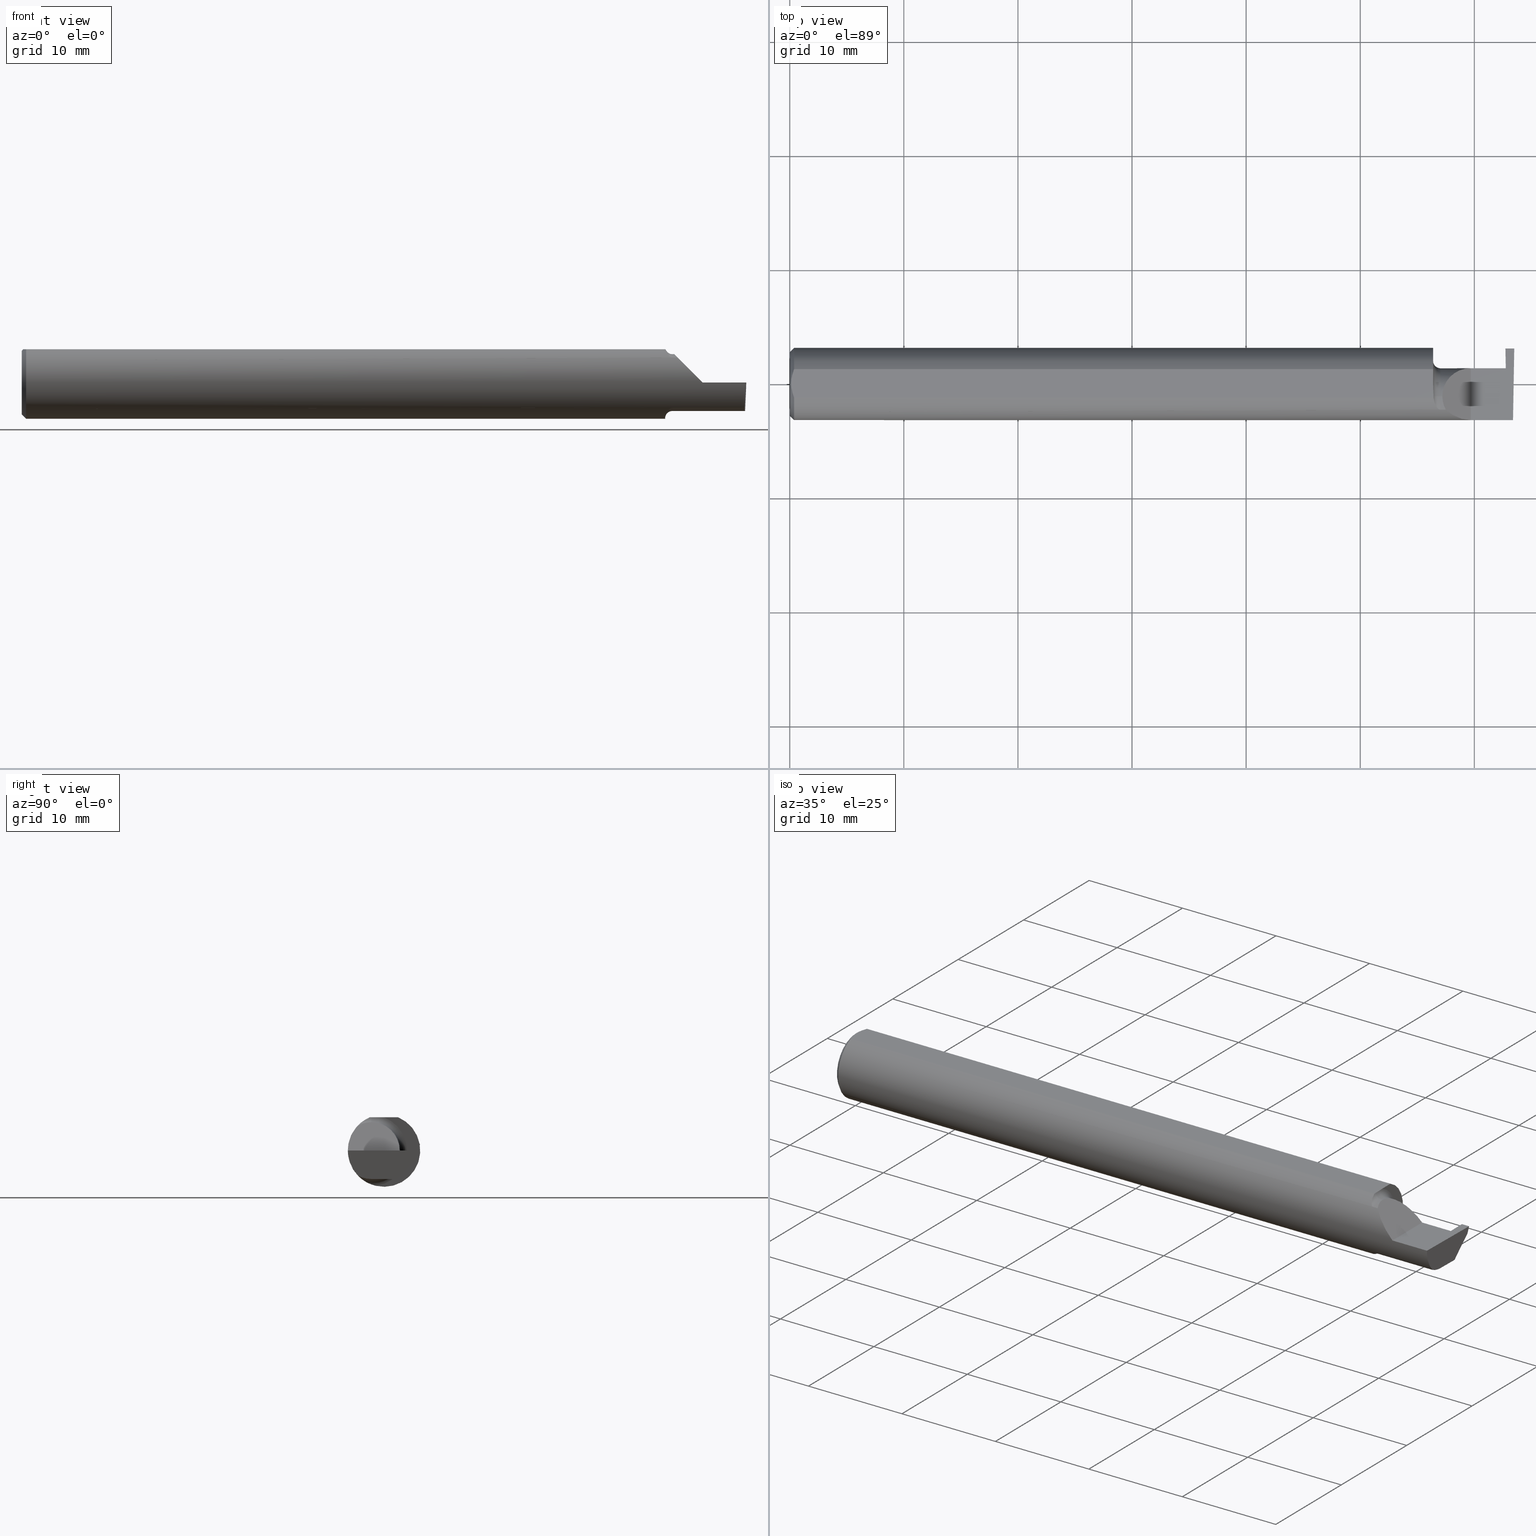
[diagram: canonical four-view strip — front | top / right | iso, engineering-drawing reading convention]
A machine part, canonical four-view strip (front | top / right | iso — engineering-drawing reading convention). The complete STEP part file that produces these views, byte-faithful:
ISO-10303-21;
HEADER;
FILE_DESCRIPTION (( 'STEP AP203' ),
    '1' );
FILE_NAME ('220812-GT030Q-4.STEP',
    '2024-07-12T17:47:26',
    ( '' ),
    ( '' ),
    'SwSTEP 2.0',
    'SolidWorks 2024',
    '' );
FILE_SCHEMA (( 'CONFIG_CONTROL_DESIGN' ));
ENDSEC;

DATA;
#1 = AXIS2_PLACEMENT_3D ( 'NONE', #203, #257, #268 ) ;
#2 = CARTESIAN_POINT ( 'NONE',  ( 2.470482208140545755, 0.05115612325138190614, -0.02403823089877875005 ) ) ;
#3 = VERTEX_POINT ( 'NONE', #682 ) ;
#4 = DIRECTION ( 'NONE',  ( 0.000000000000000000, 0.000000000000000000, -1.000000000000000000 ) ) ;
#5 = ORIENTED_EDGE ( 'NONE', *, *, #723, .F. ) ;
#6 = DIRECTION ( 'NONE',  ( -1.000000000000000000, -0.000000000000000000, -0.000000000000000000 ) ) ;
#7 = DIRECTION ( 'NONE',  ( 0.000000000000000000, 0.000000000000000000, 1.000000000000000000 ) ) ;
#8 = ORIENTED_EDGE ( 'NONE', *, *, #333, .F. ) ;
#9 = EDGE_CURVE ( 'NONE', #394, #778, #321, .T. ) ;
#10 = CYLINDRICAL_SURFACE ( 'NONE', #261, 0.09800000000000000377 ) ;
#11 = CIRCLE ( 'NONE', #310, 0.02500000000000007425 ) ;
#12 = PLANE ( 'NONE',  #287 ) ;
#13 = AXIS2_PLACEMENT_3D ( 'NONE', #550, #488, #436 ) ;
#14 = VERTEX_POINT ( 'NONE', #137 ) ;
#15 = DIRECTION ( 'NONE',  ( 0.05230942393460748935, 0.000000000000000000, -0.9986309249005007604 ) ) ;
#16 = CARTESIAN_POINT ( 'NONE',  ( 0.000000000000000000, 0.000000000000000000, 0.000000000000000000 ) ) ;
#17 = ORIENTED_EDGE ( 'NONE', *, *, #357, .T. ) ;
#18 = CARTESIAN_POINT ( 'NONE',  ( 2.470385764151949548, 0.1157284569920692396, -0.02215768028897875663 ) ) ;
#19 = DIRECTION ( 'NONE',  ( -1.000000000000000000, -0.000000000000000000, -0.000000000000000000 ) ) ;
#20 = ORIENTED_EDGE ( 'NONE', *, *, #77, .T. ) ;
#21 = CARTESIAN_POINT ( 'NONE',  ( 2.474357246084736506, 0.07735405060767834573, -0.09800000000000001765 ) ) ;
#22 = EDGE_CURVE ( 'NONE', #14, #711, #694, .T. ) ;
#23 = FACE_OUTER_BOUND ( 'NONE', #359, .T. ) ;
#24 = CIRCLE ( 'NONE', #237, 0.09800000000000000377 ) ;
#25 = AXIS2_PLACEMENT_3D ( 'NONE', #602, #319, #15 ) ;
#26 = ORIENTED_EDGE ( 'NONE', *, *, #185, .F. ) ;
#27 = VECTOR ( 'NONE', #464, 39.37007874015748143 ) ;
#28 = CARTESIAN_POINT ( 'NONE',  ( 2.399999999999999911, 0.1138861372810479888, -0.02400000000000000050 ) ) ;
#29 = CARTESIAN_POINT ( 'NONE',  ( 2.470482208140545755, 0.05115612325138190614, -0.02403823089877875005 ) ) ;
#30 = FACE_OUTER_BOUND ( 'NONE', #292, .T. ) ;
#31 = CARTESIAN_POINT ( 'NONE',  ( 2.220000000000000195, -0.04385000000000001397, 0.000000000000000000 ) ) ;
#32 = CARTESIAN_POINT ( 'NONE',  ( 2.245000000000000107, -0.04385000000000001397, 0.000000000000000000 ) ) ;
#33 = PLANE ( 'NONE',  #209 ) ;
#34 = ORIENTED_EDGE ( 'NONE', *, *, #185, .T. ) ;
#35 = APPLICATION_PROTOCOL_DEFINITION ( 'international standard', 'config_control_design', 1994, #202 ) ;
#36 = DIRECTION ( 'NONE',  ( 1.000000000000000000, 0.000000000000000000, 0.000000000000000000 ) ) ;
#37 = DIRECTION ( 'NONE',  ( 0.000000000000000000, 0.000000000000000000, 1.000000000000000000 ) ) ;
#38 = ORIENTED_EDGE ( 'NONE', *, *, #445, .F. ) ;
#39 = PERSON_AND_ORGANIZATION ( #105, #687 ) ;
#40 = AXIS2_PLACEMENT_3D ( 'NONE', #632, #332, #142 ) ;
#41 = CARTESIAN_POINT ( 'NONE',  ( 2.350000000000000089, -0.1248500000000000026, 1.836970198721028825E-17 ) ) ;
#42 = EDGE_CURVE ( 'NONE', #152, #133, #383, .T. ) ;
#43 = DIRECTION ( 'NONE',  ( -0.03489418134011375294, -0.0006090802009084596985, 0.9993908270190957621 ) ) ;
#44 = ORIENTED_EDGE ( 'NONE', *, *, #575, .T. ) ;
#45 = CALENDAR_DATE ( 2024, 12, 7 ) ;
#46 = EDGE_CURVE ( 'NONE', #189, #462, #291, .T. ) ;
#47 = EDGE_CURVE ( 'NONE', #353, #368, #98, .T. ) ;
#48 = DIRECTION ( 'NONE',  ( 0.000000000000000000, 0.000000000000000000, -1.000000000000000000 ) ) ;
#49 = ORIENTED_EDGE ( 'NONE', *, *, #582, .F. ) ;
#50 = B_SPLINE_CURVE_WITH_KNOTS ( 'NONE', 3,
 ( #439, #680, #138, #384 ),
 .UNSPECIFIED., .F., .F.,
 ( 4, 4 ),
 ( 0.001640801893433578747, 0.002088276671954489034 ),
 .UNSPECIFIED. ) ;
#51 = CARTESIAN_POINT ( 'NONE',  ( 0.004999999999999962808, 0.008410227287019804779, 0.1148500000000000076 ) ) ;
#52 = EDGE_LOOP ( 'NONE', ( #601, #372, #722, #174, #425, #259, #519 ) ) ;
#53 = PERSON_AND_ORGANIZATION_ROLE ( 'design_supplier' ) ;
#54 = AXIS2_PLACEMENT_3D ( 'NONE', #71, #685, #320 ) ;
#55 = CARTESIAN_POINT ( 'NONE',  ( 2.500000000000000000, -0.2000000000000000111, 0.000000000000000000 ) ) ;
#56 = VERTEX_POINT ( 'NONE', #524 ) ;
#57 = CARTESIAN_POINT ( 'NONE',  ( 2.239784064659362528, -0.08911389870154562409, -0.08746251087962761406 ) ) ;
#58 = CYLINDRICAL_SURFACE ( 'NONE', #507, 0.1248500000000000026 ) ;
#59 = ORIENTED_EDGE ( 'NONE', *, *, #499, .T. ) ;
#60 = EDGE_LOOP ( 'NONE', ( #590, #718, #59, #301, #339, #26, #679, #446, #64, #345, #477, #408, #560, #466 ) ) ;
#61 = DIRECTION ( 'NONE',  ( -0.7071067811865492381, 0.000000000000000000, -0.7071067811865459074 ) ) ;
#62 = AXIS2_PLACEMENT_3D ( 'NONE', #240, #603, #4 ) ;
#63 = VECTOR ( 'NONE', #347, 39.37007874015748143 ) ;
#64 = ORIENTED_EDGE ( 'NONE', *, *, #357, .F. ) ;
#65 = LINE ( 'NONE', #558, #700 ) ;
#66 = CARTESIAN_POINT ( 'NONE',  ( 2.252000000000000668, -0.04385000000000001397, 0.09800000000000000377 ) ) ;
#67 = EDGE_CURVE ( 'NONE', #404, #245, #697, .T. ) ;
#68 = ORIENTED_EDGE ( 'NONE', *, *, #437, .T. ) ;
#69 = DIRECTION ( 'NONE',  ( -1.000000000000000000, -0.000000000000000000, -0.000000000000000000 ) ) ;
#70 = EDGE_CURVE ( 'NONE', #778, #462, #717, .T. ) ;
#71 = CARTESIAN_POINT ( 'NONE',  ( 2.220000000000000195, -0.04385000000000001397, 0.000000000000000000 ) ) ;
#72 = ORIENTED_EDGE ( 'NONE', *, *, #70, .T. ) ;
#73 = CARTESIAN_POINT ( 'NONE',  ( 2.245000000000000107, -0.09015216647662478711, -0.08637192471845771269 ) ) ;
#74 = VECTOR ( 'NONE', #652, 39.37007874015748143 ) ;
#75 = PLANE ( 'NONE',  #561 ) ;
#76 = AXIS2_PLACEMENT_3D ( 'NONE', #32, #285, #522 ) ;
#77 = EDGE_CURVE ( 'NONE', #570, #391, #168, .T. ) ;
#78 = CARTESIAN_POINT ( 'NONE',  ( 2.499907402661638134, 0.1211597610527450908, -0.002875862722115925512 ) ) ;
#79 = DIRECTION ( 'NONE',  ( -0.000000000000000000, 1.000000000000000000, 1.224646799147353207E-16 ) ) ;
#80 = EDGE_CURVE ( 'NONE', #637, #711, #350, .T. ) ;
#81 = DIRECTION ( 'NONE',  ( 0.000000000000000000, 0.000000000000000000, 1.000000000000000000 ) ) ;
#82 =( BOUNDED_CURVE ( )  B_SPLINE_CURVE ( 3, ( #29, #460, #87, #158 ),
 .UNSPECIFIED., .F., .F. ) 
 B_SPLINE_CURVE_WITH_KNOTS ( ( 4, 4 ),
 ( 4.463962699426422986, 4.711356644242684411 ),
 .UNSPECIFIED. ) 
 CURVE ( )  GEOMETRIC_REPRESENTATION_ITEM ( )  RATIONAL_B_SPLINE_CURVE ( ( 1.000000000000000000, 0.9949061863228998437, 0.9949061863228998437, 1.000000000000000000 ) ) 
 REPRESENTATION_ITEM ( '' )  );
#83 = ORIENTED_EDGE ( 'NONE', *, *, #604, .T. ) ;
#84 = FACE_OUTER_BOUND ( 'NONE', #545, .T. ) ;
#85 = ORIENTED_EDGE ( 'NONE', *, *, #692, .T. ) ;
#86 = DIRECTION ( 'NONE',  ( 0.9991632577875578791, -2.492636860402691780E-05, 0.04089967806756397706 ) ) ;
#87 = CARTESIAN_POINT ( 'NONE',  ( 2.469831655309489893, 0.05414656493488105571, -0.008143655253979765682 ) ) ;
#88 = VECTOR ( 'NONE', #577, 39.37007874015748143 ) ;
#89 = ORIENTED_EDGE ( 'NONE', *, *, #274, .T. ) ;
#90 = CC_DESIGN_APPROVAL ( #224, ( #780 ) ) ;
#91 = FACE_OUTER_BOUND ( 'NONE', #433, .T. ) ;
#92 = CARTESIAN_POINT ( 'NONE',  ( 2.220000000000000195, 0.05414999999999998981, 3.429011037612586318E-17 ) ) ;
#93 = EDGE_CURVE ( 'NONE', #430, #394, #112, .T. ) ;
#94 = DIRECTION ( 'NONE',  ( 1.000000000000000000, 0.000000000000000000, 0.000000000000000000 ) ) ;
#95 = ORIENTED_EDGE ( 'NONE', *, *, #22, .T. ) ;
#96 = DIRECTION ( 'NONE',  ( 0.000000000000000000, 0.000000000000000000, 1.000000000000000000 ) ) ;
#97 = CARTESIAN_POINT ( 'NONE',  ( 2.493072779947982820, -0.1248043149033065263, -0.09996577117162364079 ) ) ;
#98 = LINE ( 'NONE', #415, #584 ) ;
#99 = ORIENTED_EDGE ( 'NONE', *, *, #500, .T. ) ;
#100 = CARTESIAN_POINT ( 'NONE',  ( 2.234311064734461283, -0.08485061678078677228, -0.09161469295857038730 ) ) ;
#101 = CARTESIAN_POINT ( 'NONE',  ( 2.350000000000000089, -0.2000000000000000111, 1.836970198721028825E-17 ) ) ;
#102 = VECTOR ( 'NONE', #231, 39.37007874015748143 ) ;
#103 = ORIENTED_EDGE ( 'NONE', *, *, #130, .T. ) ;
#104 = AXIS2_PLACEMENT_3D ( 'NONE', #443, #79, #503 ) ;
#105 = PERSON ( 'UNSPECIFIED', 'UNSPECIFIED', 'UNSPECIFIED', ('UNSPECIFIED'), ('UNSPECIFIED'), ('UNSPECIFIED') ) ;
#106 = DIRECTION ( 'NONE',  ( -0.03699114979480280091, 0.7066228325057370974, 0.7066228325057345439 ) ) ;
#107 = CARTESIAN_POINT ( 'NONE',  ( 2.221090261106631658, -0.02916888161107700911, 0.1148499999999999938 ) ) ;
#108 = EDGE_LOOP ( 'NONE', ( #750, #505, #103, #49 ) ) ;
#109 = APPROVAL_DATE_TIME ( #160, #224 ) ;
#110 =( BOUNDED_CURVE ( )  B_SPLINE_CURVE ( 3, ( #147, #506, #683, #401 ),
 .UNSPECIFIED., .F., .T. ) 
 B_SPLINE_CURVE_WITH_KNOTS ( ( 4, 4 ),
 ( 0.000000000000000000, 1.570796326794896558 ),
 .UNSPECIFIED. ) 
 CURVE ( )  GEOMETRIC_REPRESENTATION_ITEM ( )  RATIONAL_B_SPLINE_CURVE ( ( 1.000000000000000000, 0.8047378541243649375, 0.8047378541243649375, 1.000000000000000000 ) ) 
 REPRESENTATION_ITEM ( '' )  );
#111 = EDGE_CURVE ( 'NONE', #631, #706, #716, .T. ) ;
#112 = LINE ( 'NONE', #358, #388 ) ;
#113 = ORIENTED_EDGE ( 'NONE', *, *, #227, .T. ) ;
#114 = CALENDAR_DATE ( 2024, 12, 7 ) ;
#115 = PRODUCT_RELATED_PRODUCT_CATEGORY ( 'detail', '', ( #325 ) ) ;
#116 = DIRECTION ( 'NONE',  ( 0.000000000000000000, 0.000000000000000000, 1.000000000000000000 ) ) ;
#117 = ORIENTED_EDGE ( 'NONE', *, *, #70, .F. ) ;
#118 = CIRCLE ( 'NONE', #273, 0.1098500000000000032 ) ;
#119 = CARTESIAN_POINT ( 'NONE',  ( 2.245000000000000107, -0.04385000000000001397, 0.000000000000000000 ) ) ;
#120 = ORIENTED_EDGE ( 'NONE', *, *, #47, .F. ) ;
#121 = CARTESIAN_POINT ( 'NONE',  ( 0.004999999999999964542, -0.008410771716546819321, 0.1148500000000000215 ) ) ;
#122 = DIRECTION ( 'NONE',  ( 0.7071067811865476838, 8.659560562354930393E-17, 0.7071067811865473507 ) ) ;
#123 = VERTEX_POINT ( 'NONE', #710 ) ;
#124 = CARTESIAN_POINT ( 'NONE',  ( 0.01499999999999999944, 0.000000000000000000, -0.1248500000000000026 ) ) ;
#125 = ADVANCED_FACE ( 'NONE', ( #30 ), #363, .T. ) ;
#126 = CARTESIAN_POINT ( 'NONE',  ( 2.494253479596433731, -0.06008937020638527304, -0.09800000000000000377 ) ) ;
#127 = EDGE_LOOP ( 'NONE', ( #735, #698, #238 ) ) ;
#128 = DIRECTION ( 'NONE',  ( 0.000000000000000000, 0.000000000000000000, 1.000000000000000000 ) ) ;
#129 = AXIS2_PLACEMENT_3D ( 'NONE', #733, #664, #135 ) ;
#130 = EDGE_CURVE ( 'NONE', #269, #654, #288, .T. ) ;
#131 = LOCAL_TIME ( 10, 47, 26.00000000000000000, #719 ) ;
#132 = DIRECTION ( 'NONE',  ( 0.000000000000000000, 0.000000000000000000, 1.000000000000000000 ) ) ;
#133 = VERTEX_POINT ( 'NONE', #705 ) ;
#134 = EDGE_CURVE ( 'NONE', #631, #245, #11, .T. ) ;
#135 = DIRECTION ( 'NONE',  ( 0.000000000000000000, 0.000000000000000000, -1.000000000000000000 ) ) ;
#136 = FACE_OUTER_BOUND ( 'NONE', #784, .T. ) ;
#137 = CARTESIAN_POINT ( 'NONE',  ( 2.494033449660866708, -0.09015216647662482874, -0.08637192471845768493 ) ) ;
#138 = CARTESIAN_POINT ( 'NONE',  ( 2.219999999999999751, -0.03284222813693380566, -0.1205938689030582739 ) ) ;
#139 = CARTESIAN_POINT ( 'NONE',  ( 2.221326891871132858, -0.04895916665958129077, 0.1148500000000000076 ) ) ;
#140 =( BOUNDED_CURVE ( )  B_SPLINE_CURVE ( 3, ( #159, #155, #295, #348 ),
 .UNSPECIFIED., .F., .T. ) 
 B_SPLINE_CURVE_WITH_KNOTS ( ( 4, 4 ),
 ( 0.2190942387645742062, 0.9826237902197102470 ),
 .UNSPECIFIED. ) 
 CURVE ( )  GEOMETRIC_REPRESENTATION_ITEM ( )  RATIONAL_B_SPLINE_CURVE ( ( 1.000000000000000000, 0.9520057322288819623, 0.9520057322288819623, 1.000000000000000000 ) ) 
 REPRESENTATION_ITEM ( '' )  );
#141 = ORIENTED_EDGE ( 'NONE', *, *, #342, .F. ) ;
#142 = DIRECTION ( 'NONE',  ( 0.000000000000000000, 0.000000000000000000, 1.000000000000000000 ) ) ;
#143 = CARTESIAN_POINT ( 'NONE',  ( 0.000000000000000000, 0.04895916665957456698, 0.1148500000000000076 ) ) ;
#144 = CIRCLE ( 'NONE', #104, 0.02500000000000007425 ) ;
#145 = VERTEX_POINT ( 'NONE', #173 ) ;
#146 = B_SPLINE_CURVE_WITH_KNOTS ( 'NONE', 3,
 ( #736, #121, #619, #315, #322, #306 ),
 .UNSPECIFIED., .F., .F.,
 ( 4, 2, 4 ),
 ( 0.003658435455108827606, 0.004289327297787134258, 0.004920219140465441343 ),
 .UNSPECIFIED. ) ;
#147 = CARTESIAN_POINT ( 'NONE',  ( 2.252000000000000668, -0.04385000000000001397, 0.09800000000000000377 ) ) ;
#148 = B_SPLINE_CURVE_WITH_KNOTS ( 'NONE', 3,
 ( #221, #480, #57, #151, #100, #635, #302, #281, #785, #701, #278, #630 ),
 .UNSPECIFIED., .F., .F.,
 ( 4, 2, 2, 2, 2, 4 ),
 ( 1.963988863453036158E-07, 0.0002052720857047455423, 0.0004103477725231457476, 0.0008204991461599567834, 0.001230650519796767711, 0.001640801893433578747 ),
 .UNSPECIFIED. ) ;
#149 = CARTESIAN_POINT ( 'NONE',  ( 2.494536841675280225, -0.04385000000000003478, -0.09799999999999998990 ) ) ;
#150 = ORIENTED_EDGE ( 'NONE', *, *, #467, .T. ) ;
#151 = CARTESIAN_POINT ( 'NONE',  ( 2.235875432832430398, -0.08647060418110448510, -0.09007670266896471156 ) ) ;
#152 = VERTEX_POINT ( 'NONE', #461 ) ;
#153 = CYLINDRICAL_SURFACE ( 'NONE', #508, 0.09800000000000000377 ) ;
#154 = DIRECTION ( 'NONE',  ( 0.000000000000000000, 0.000000000000000000, -1.000000000000000000 ) ) ;
#155 = CARTESIAN_POINT ( 'NONE',  ( 2.494256244271086054, -0.1126860773865890342, -0.06285177167860771241 ) ) ;
#156 = ORIENTED_EDGE ( 'NONE', *, *, #555, .T. ) ;
#157 =( LENGTH_UNIT ( ) NAMED_UNIT ( * ) SI_UNIT ( $, .METRE. ) );
#158 = CARTESIAN_POINT ( 'NONE',  ( 2.469500000000000028, 0.05414999123725637575, -4.144270477499208333E-05 ) ) ;
#159 = CARTESIAN_POINT ( 'NONE',  ( 2.494033449660866708, -0.09015216647662482874, -0.08637192471845768493 ) ) ;
#160 = DATE_AND_TIME ( #114, #338 ) ;
#161 = EDGE_CURVE ( 'NONE', #263, #3, #407, .T. ) ;
#162 = CARTESIAN_POINT ( 'NONE',  ( 2.470482208140545755, 0.05416464901751381900, -0.02403639734835130021 ) ) ;
#163 = CARTESIAN_POINT ( 'NONE',  ( 2.245000000000000107, -0.04385000000000001397, 0.1230000000000000121 ) ) ;
#164 = EDGE_CURVE ( 'NONE', #14, #56, #140, .T. ) ;
#165 = ORIENTED_EDGE ( 'NONE', *, *, #469, .F. ) ;
#166 = CALENDAR_DATE ( 2024, 12, 7 ) ;
#167 = CARTESIAN_POINT ( 'NONE',  ( 2.470482208140545755, 0.05115612325138190614, -0.02403823089877875005 ) ) ;
#168 = LINE ( 'NONE', #773, #180 ) ;
#169 = ADVANCED_FACE ( 'NONE', ( #641 ), #352, .T. ) ;
#170 = VECTOR ( 'NONE', #122, 39.37007874015748143 ) ;
#171 = CALENDAR_DATE ( 2024, 12, 7 ) ;
#172 = VECTOR ( 'NONE', #565, 39.37007874015748143 ) ;
#173 = CARTESIAN_POINT ( 'NONE',  ( 2.220756598855983643, -0.04384999999999998621, -0.1168961077196328385 ) ) ;
#174 = ORIENTED_EDGE ( 'NONE', *, *, #582, .T. ) ;
#175 = DATE_AND_TIME ( #45, #131 ) ;
#176 = CARTESIAN_POINT ( 'NONE',  ( 2.350000000000000089, -0.1248500000000000026, 1.836970198721028825E-17 ) ) ;
#177 = ORIENTED_EDGE ( 'NONE', *, *, #467, .F. ) ;
#178 = DIRECTION ( 'NONE',  ( -1.000000000000000000, -0.000000000000000000, -0.000000000000000000 ) ) ;
#179 = ORIENTED_EDGE ( 'NONE', *, *, #111, .F. ) ;
#180 = VECTOR ( 'NONE', #473, 39.37007874015748143 ) ;
#181 = AXIS2_PLACEMENT_3D ( 'NONE', #788, #554, #380 ) ;
#182 = CARTESIAN_POINT ( 'NONE',  ( 2.252000000000000668, -0.06008937020638503712, 0.09799999999999998990 ) ) ;
#183 = CARTESIAN_POINT ( 'NONE',  ( 2.473606678051654573, 0.05420100202805250983, -0.08368513525298935940 ) ) ;
#184 = ORIENTED_EDGE ( 'NONE', *, *, #575, .F. ) ;
#185 = EDGE_CURVE ( 'NONE', #404, #207, #636, .T. ) ;
#186 = PLANE ( 'NONE',  #181 ) ;
#187 = ADVANCED_FACE ( 'NONE', ( #344 ), #33, .F. ) ;
#188 = DIRECTION ( 'NONE',  ( -1.000000000000000000, 0.000000000000000000, 1.224646799147352221E-16 ) ) ;
#189 = VERTEX_POINT ( 'NONE', #478 ) ;
#190 = ADVANCED_FACE ( 'NONE', ( #427 ), #58, .T. ) ;
#191 = DIRECTION ( 'NONE',  ( -7.219510806010323641E-16, 0.9999998142845092364, 0.0006094513490878469570 ) ) ;
#192 = CARTESIAN_POINT ( 'NONE',  ( 2.221326891871132858, -0.04895916665958129077, 0.1148500000000000076 ) ) ;
#193 = ORIENTED_EDGE ( 'NONE', *, *, #67, .F. ) ;
#194 = FACE_OUTER_BOUND ( 'NONE', #251, .T. ) ;
#195 = AXIS2_PLACEMENT_3D ( 'NONE', #55, #670, #188 ) ;
#196 = AXIS2_PLACEMENT_3D ( 'NONE', #695, #704, #154 ) ;
#197 = CC_DESIGN_SECURITY_CLASSIFICATION ( #780, ( #634 ) ) ;
#198 = FACE_OUTER_BOUND ( 'NONE', #108, .T. ) ;
#199 = ORIENTED_EDGE ( 'NONE', *, *, #491, .F. ) ;
#200 = CC_DESIGN_PERSON_AND_ORGANIZATION_ASSIGNMENT ( #39, #53, ( #634 ) ) ;
#201 = CARTESIAN_POINT ( 'NONE',  ( 2.219999999999999751, 0.0001781444078671173391, 0.1148500000000000076 ) ) ;
#202 = APPLICATION_CONTEXT ( 'configuration controlled 3d designs of mechanical parts and assemblies' ) ;
#203 = CARTESIAN_POINT ( 'NONE',  ( 2.245000000000000107, -0.04385000000000001397, 0.000000000000000000 ) ) ;
#204 = ORIENTED_EDGE ( 'NONE', *, *, #134, .T. ) ;
#205 = LINE ( 'NONE', #28, #595 ) ;
#206 = CARTESIAN_POINT ( 'NONE',  ( 2.474356049968029048, 0.05420972092308060097, -0.09799127047100435195 ) ) ;
#207 = VERTEX_POINT ( 'NONE', #783 ) ;
#208 = MANIFOLD_SOLID_BREP ( 'Front Angle', #323 ) ;
#209 = AXIS2_PLACEMENT_3D ( 'NONE', #283, #518, #481 ) ;
#210 = CARTESIAN_POINT ( 'NONE',  ( 2.500000000000000000, 0.1221500000000000224, 1.614031285319217924E-16 ) ) ;
#211 = CIRCLE ( 'NONE', #661, 0.1248500000000000026 ) ;
#212 = VERTEX_POINT ( 'NONE', #608 ) ;
#213 = CARTESIAN_POINT ( 'NONE',  ( 0.000000000000000000, 0.000000000000000000, 0.000000000000000000 ) ) ;
#214 = CARTESIAN_POINT ( 'NONE',  ( 2.500000000000000000, 0.05414999999999998981, -4.082792423329594993E-33 ) ) ;
#215 = DIRECTION ( 'NONE',  ( -0.03042981077198511977, -0.3254173858243485373, -0.9450807116958996890 ) ) ;
#216 = ADVANCED_FACE ( 'NONE', ( #371 ), #303, .F. ) ;
#217 = CARTESIAN_POINT ( 'NONE',  ( 2.263628075281542529, -0.09015216647662421812, 0.08637192471845822617 ) ) ;
#218 = DIRECTION ( 'NONE',  ( -1.000000000000000000, -0.000000000000000000, -0.000000000000000000 ) ) ;
#219 = ADVANCED_FACE ( 'NONE', ( #662 ), #485, .T. ) ;
#220 = APPLICATION_PROTOCOL_DEFINITION ( 'international standard', 'config_control_design', 1994, #709 ) ;
#221 = CARTESIAN_POINT ( 'NONE',  ( 2.245000000000000107, -0.09015216647662478711, -0.08637192471845771269 ) ) ;
#222 = AXIS2_PLACEMENT_3D ( 'NONE', #569, #620, #493 ) ;
#223 = CARTESIAN_POINT ( 'NONE',  ( 2.245000000000000107, -0.04385000000000001397, 0.000000000000000000 ) ) ;
#224 = APPROVAL ( #413, 'UNSPECIFIED' ) ;
#225 =( BOUNDED_CURVE ( )  B_SPLINE_CURVE ( 3, ( #264, #612, #182, #426 ),
 .UNSPECIFIED., .F., .F. ) 
 B_SPLINE_CURVE_WITH_KNOTS ( ( 4, 4 ),
 ( 5.791092865617133434, 6.283185307179586232 ),
 .UNSPECIFIED. ) 
 CURVE ( )  GEOMETRIC_REPRESENTATION_ITEM ( )  RATIONAL_B_SPLINE_CURVE ( ( 1.000000000000000000, 0.9799220177372784946, 0.9799220177372784946, 1.000000000000000000 ) ) 
 REPRESENTATION_ITEM ( '' )  );
#226 = CARTESIAN_POINT ( 'NONE',  ( 0.01499999999999999944, -0.04895916665957456698, 0.1148500000000000076 ) ) ;
#227 = EDGE_CURVE ( 'NONE', #375, #330, #420, .T. ) ;
#228 = CARTESIAN_POINT ( 'NONE',  ( 2.219999999999999751, 0.0001781444078671173391, 0.1148500000000000076 ) ) ;
#229 = ORIENTED_EDGE ( 'NONE', *, *, #312, .T. ) ;
#230 = CARTESIAN_POINT ( 'NONE',  ( 2.472853341463134402, 0.03970102213383024797, -0.06931214282740405519 ) ) ;
#231 = DIRECTION ( 'NONE',  ( 1.000000000000000000, 0.000000000000000000, 0.000000000000000000 ) ) ;
#232 = VERTEX_POINT ( 'NONE', #2 ) ;
#233 = COORDINATED_UNIVERSAL_TIME_OFFSET ( 8, 0, .BEHIND. ) ;
#234 = CC_DESIGN_DATE_AND_TIME_ASSIGNMENT ( #531, #299, ( #780 ) ) ;
#235 = DIRECTION ( 'NONE',  ( 0.000000000000000000, -1.000000000000000000, 0.000000000000000000 ) ) ;
#236 = VECTOR ( 'NONE', #43, 39.37007874015748143 ) ;
#237 = AXIS2_PLACEMENT_3D ( 'NONE', #374, #178, #737 ) ;
#238 = ORIENTED_EDGE ( 'NONE', *, *, #80, .T. ) ;
#239 = LOCAL_TIME ( 10, 47, 26.00000000000000000, #354 ) ;
#240 = CARTESIAN_POINT ( 'NONE',  ( 2.219999999999999751, 0.1541499999999999815, 0.000000000000000000 ) ) ;
#241 = CARTESIAN_POINT ( 'NONE',  ( 0.01499999999999999944, 1.528971528735470422E-17, 0.1248500000000000026 ) ) ;
#242 = ORIENTED_EDGE ( 'NONE', *, *, #307, .T. ) ;
#243 = LINE ( 'NONE', #397, #471 ) ;
#244 = CARTESIAN_POINT ( 'NONE',  ( 2.496652745773395576, 0.07741163850316090667, -0.09800000000000001765 ) ) ;
#245 = VERTEX_POINT ( 'NONE', #362 ) ;
#246 = AXIS2_PLACEMENT_3D ( 'NONE', #646, #777, #37 ) ;
#247 = AXIS2_PLACEMENT_3D ( 'NONE', #556, #390, #678 ) ;
#248 = DIRECTION ( 'NONE',  ( -1.000000000000000000, -0.000000000000000000, -0.000000000000000000 ) ) ;
#249 =( BOUNDED_CURVE ( )  B_SPLINE_CURVE ( 3, ( #772, #708, #230, #167 ),
 .UNSPECIFIED., .F., .F. ) 
 B_SPLINE_CURVE_WITH_KNOTS ( ( 4, 4 ),
 ( 3.140983202202990654, 4.463962699426419434 ),
 .UNSPECIFIED. ) 
 CURVE ( )  GEOMETRIC_REPRESENTATION_ITEM ( )  RATIONAL_B_SPLINE_CURVE ( ( 1.000000000000000000, 0.8593853101475608103, 0.8593853101475608103, 1.000000000000000000 ) ) 
 REPRESENTATION_ITEM ( '' )  );
#250 = CARTESIAN_POINT ( 'NONE',  ( 2.494033449660866708, -0.09015216647662482874, -0.08637192471845768493 ) ) ;
#251 = EDGE_LOOP ( 'NONE', ( #671, #428, #193, #34 ) ) ;
#252 = DIRECTION ( 'NONE',  ( 0.000000000000000000, 0.000000000000000000, 1.000000000000000000 ) ) ;
#253 = DIRECTION ( 'NONE',  ( 1.000000000000000000, -0.000000000000000000, -0.000000000000000000 ) ) ;
#254 = ADVANCED_FACE ( 'NONE', ( #476 ), #609, .F. ) ;
#255 = ORIENTED_EDGE ( 'NONE', *, *, #361, .T. ) ;
#256 = DIRECTION ( 'NONE',  ( -0.7071067811865459074, 0.000000000000000000, 0.7071067811865492381 ) ) ;
#257 = DIRECTION ( 'NONE',  ( -1.000000000000000000, -0.000000000000000000, -0.000000000000000000 ) ) ;
#258 = APPROVAL ( #699, 'UNSPECIFIED' ) ;
#259 = ORIENTED_EDGE ( 'NONE', *, *, #532, .F. ) ;
#260 = PLANE ( 'NONE',  #13 ) ;
#261 = AXIS2_PLACEMENT_3D ( 'NONE', #562, #248, #128 ) ;
#262 = PLANE ( 'NONE',  #247 ) ;
#263 = VERTEX_POINT ( 'NONE', #176 ) ;
#264 = CARTESIAN_POINT ( 'NONE',  ( 2.263628075281542529, -0.09015216647662421812, 0.08637192471845822617 ) ) ;
#265 = CARTESIAN_POINT ( 'NONE',  ( 2.222489051389916703, -0.05793447593726087225, 0.1110239341510881605 ) ) ;
#266 = DESIGN_CONTEXT ( 'detailed design', #709, 'design' ) ;
#267 = EDGE_LOOP ( 'NONE', ( #553, #120, #421, #95, #643 ) ) ;
#268 = DIRECTION ( 'NONE',  ( 0.000000000000000000, 0.000000000000000000, 1.000000000000000000 ) ) ;
#269 = VERTEX_POINT ( 'NONE', #183 ) ;
#270 = TOROIDAL_SURFACE ( 'NONE', #713, 0.1230000000000000121, 0.02500000000000007425 ) ;
#271 = AXIS2_PLACEMENT_3D ( 'NONE', #313, #308, #132 ) ;
#272 = DIRECTION ( 'NONE',  ( -0.9995051766793263681, 0.01744044634006990460, 0.02617694830739123249 ) ) ;
#273 = AXIS2_PLACEMENT_3D ( 'NONE', #16, #614, #7 ) ;
#274 = EDGE_CURVE ( 'NONE', #133, #394, #725, .T. ) ;
#275 = ORIENTED_EDGE ( 'NONE', *, *, #9, .T. ) ;
#276 =( NAMED_UNIT ( * ) SI_UNIT ( $, .STERADIAN. ) SOLID_ANGLE_UNIT ( ) );
#277 = EDGE_CURVE ( 'NONE', #14, #353, #789, .T. ) ;
#278 = CARTESIAN_POINT ( 'NONE',  ( 2.221227715916083589, -0.04883822427082840090, -0.1150249279297937410 ) ) ;
#279 = DIRECTION ( 'NONE',  ( 0.01744642479411244104, 0.9998477995484630343, -2.135106780035405654E-18 ) ) ;
#280 = PERSON_AND_ORGANIZATION_ROLE ( 'design_owner' ) ;
#281 = CARTESIAN_POINT ( 'NONE',  ( 2.225064983703084920, -0.06736177101644139076, -0.1052426774175049262 ) ) ;
#282 = EDGE_CURVE ( 'NONE', #483, #330, #523, .T. ) ;
#283 = CARTESIAN_POINT ( 'NONE',  ( 0.000000000000000000, 0.000000000000000000, 0.000000000000000000 ) ) ;
#284 = ORIENTED_EDGE ( 'NONE', *, *, #227, .F. ) ;
#285 = DIRECTION ( 'NONE',  ( -1.000000000000000000, -0.000000000000000000, -0.000000000000000000 ) ) ;
#286 = AXIS2_PLACEMENT_3D ( 'NONE', #223, #588, #766 ) ;
#287 = AXIS2_PLACEMENT_3D ( 'NONE', #746, #624, #563 ) ;
#288 = LINE ( 'NONE', #578, #236 ) ;
#289 = ORIENTED_EDGE ( 'NONE', *, *, #134, .F. ) ;
#290 = DATE_TIME_ROLE ( 'creation_date' ) ;
#291 = LINE ( 'NONE', #403, #102 ) ;
#292 = EDGE_LOOP ( 'NONE', ( #479, #113, #498, #738, #184 ) ) ;
#293 = APPROVAL_STATUS ( 'not_yet_approved' ) ;
#294 = B_SPLINE_CURVE_WITH_KNOTS ( 'NONE', 3,
 ( #192, #432, #538, #600, #300, #659 ),
 .UNSPECIFIED., .F., .F.,
 ( 4, 2, 4 ),
 ( 0.009355404735376996600, 0.009420041905751082301, 0.009484679076125166267 ),
 .UNSPECIFIED. ) ;
#295 = CARTESIAN_POINT ( 'NONE',  ( 2.494835769263151537, -0.1248351010429638169, -0.03262966116142150541 ) ) ;
#296 = ORIENTED_EDGE ( 'NONE', *, *, #342, .T. ) ;
#297 = FACE_OUTER_BOUND ( 'NONE', #438, .T. ) ;
#298 = VERTEX_POINT ( 'NONE', #489 ) ;
#299 = DATE_TIME_ROLE ( 'classification_date' ) ;
#300 = CARTESIAN_POINT ( 'NONE',  ( 2.221365755776839812, -0.04470142129451338403, 0.1148500000000000076 ) ) ;
#301 = ORIENTED_EDGE ( 'NONE', *, *, #515, .T. ) ;
#302 = CARTESIAN_POINT ( 'NONE',  ( 2.228278800716858132, -0.07573621487658345475, -0.09938639293507163519 ) ) ;
#303 = PLANE ( 'NONE',  #195 ) ;
#304 = ADVANCED_FACE ( 'NONE', ( #297 ), #270, .F. ) ;
#305 = EDGE_LOOP ( 'NONE', ( #20, #229, #676, #150, #691, #647, #454 ) ) ;
#306 = CARTESIAN_POINT ( 'NONE',  ( 0.01499999999999999944, -0.04895916665957456698, 0.1148500000000000076 ) ) ;
#307 = EDGE_CURVE ( 'NONE', #123, #298, #24, .T. ) ;
#308 = DIRECTION ( 'NONE',  ( -1.000000000000000000, -0.000000000000000000, -0.000000000000000000 ) ) ;
#309 = ORIENTED_EDGE ( 'NONE', *, *, #745, .T. ) ;
#310 = AXIS2_PLACEMENT_3D ( 'NONE', #163, #235, #513 ) ;
#311 = CARTESIAN_POINT ( 'NONE',  ( 2.221365755776839368, -0.04385000000000001397, 0.1148500000000000076 ) ) ;
#312 = EDGE_CURVE ( 'NONE', #391, #631, #294, .T. ) ;
#313 = CARTESIAN_POINT ( 'NONE',  ( 2.245000000000000107, -0.04385000000000001397, 0.000000000000000000 ) ) ;
#314 = ORIENTED_EDGE ( 'NONE', *, *, #555, .F. ) ;
#315 = CARTESIAN_POINT ( 'NONE',  ( 0.009415874254822407391, -0.03313958207962815206, 0.1148500000000000076 ) ) ;
#316 = CC_DESIGN_PERSON_AND_ORGANIZATION_ASSIGNMENT ( #648, #526, ( #780 ) ) ;
#317 = CARTESIAN_POINT ( 'NONE',  ( 2.231053217927789767, -0.08094812012701402271, 0.09514231764808572800 ) ) ;
#318 = ORIENTED_EDGE ( 'NONE', *, *, #328, .T. ) ;
#319 = DIRECTION ( 'NONE',  ( 0.9986309243930275859, -3.188005489065327456E-05, 0.05230942390802546110 ) ) ;
#320 = DIRECTION ( 'NONE',  ( 0.000000000000000000, 0.000000000000000000, 1.000000000000000000 ) ) ;
#321 = LINE ( 'NONE', #78, #423 ) ;
#322 = CARTESIAN_POINT ( 'NONE',  ( 0.01195732443765547617, -0.04120008761723503027, 0.1148500000000000076 ) ) ;
#323 = CLOSED_SHELL ( 'NONE', ( #419, #642, #254, #304, #125, #190, #169, #216, #668, #527, #187, #369, #219, #753, #689, #658, #414, #382, #366, #597, #731, #416 ) ) ;
#324 = AXIS2_PLACEMENT_3D ( 'NONE', #334, #741, #81 ) ;
#325 = PRODUCT ( '220812-GT030Q-4', '220812-GT030Q-4', '', ( #572 ) ) ;
#326 = CARTESIAN_POINT ( 'NONE',  ( 2.221326891871132858, -0.04895916665958129077, 0.1148500000000000076 ) ) ;
#327 = EDGE_LOOP ( 'NONE', ( #615, #99, #314, #525, #775, #502, #242, #199 ) ) ;
#328 = EDGE_CURVE ( 'NONE', #462, #353, #541, .T. ) ;
#329 = LINE ( 'NONE', #206, #410 ) ;
#330 = VERTEX_POINT ( 'NONE', #367 ) ;
#331 = EDGE_CURVE ( 'NONE', #483, #622, #211, .T. ) ;
#332 = DIRECTION ( 'NONE',  ( -1.000000000000000000, -0.000000000000000000, -0.000000000000000000 ) ) ;
#333 = EDGE_CURVE ( 'NONE', #654, #123, #690, .T. ) ;
#334 = CARTESIAN_POINT ( 'NONE',  ( 0.01499999999999999944, 0.000000000000000000, 0.000000000000000000 ) ) ;
#335 = EDGE_LOOP ( 'NONE', ( #284, #598, #44, #17, #539 ) ) ;
#336 = CIRCLE ( 'NONE', #324, 0.1248500000000000026 ) ;
#337 = CARTESIAN_POINT ( 'NONE',  ( 2.240195245915189926, -0.08928014009842913379, 0.08728826463235836441 ) ) ;
#338 = LOCAL_TIME ( 10, 47, 26.00000000000000000, #233 ) ;
#339 = ORIENTED_EDGE ( 'NONE', *, *, #445, .T. ) ;
#340 = LINE ( 'NONE', #18, #482 ) ;
#341 = CC_DESIGN_DATE_AND_TIME_ASSIGNMENT ( #175, #290, ( #509 ) ) ;
#342 = EDGE_CURVE ( 'NONE', #212, #269, #329, .T. ) ;
#343 = LINE ( 'NONE', #162, #88 ) ;
#344 = FACE_OUTER_BOUND ( 'NONE', #667, .T. ) ;
#345 = ORIENTED_EDGE ( 'NONE', *, *, #331, .F. ) ;
#346 = APPROVAL_ROLE ( '' ) ;
#347 = DIRECTION ( 'NONE',  ( -1.000000000000000000, -0.000000000000000000, -0.000000000000000000 ) ) ;
#348 = CARTESIAN_POINT ( 'NONE',  ( 2.495688583004118666, -0.1248499869621840785, -5.705736120965713455E-05 ) ) ;
#349 = CARTESIAN_POINT ( 'NONE',  ( 2.236486677516483557, -0.08696861555848790781, 0.08959154238187717889 ) ) ;
#350 = CIRCLE ( 'NONE', #286, 0.09800000000000000377 ) ;
#351 = TOROIDAL_SURFACE ( 'NONE', #1, 0.1230000000000000121, 0.02500000000000007425 ) ;
#352 = PLANE ( 'NONE',  #649 ) ;
#353 = VERTEX_POINT ( 'NONE', #149 ) ;
#354 = COORDINATED_UNIVERSAL_TIME_OFFSET ( 8, 0, .BEHIND. ) ;
#355 = CARTESIAN_POINT ( 'NONE',  ( 2.287163018370355072, -0.1127002472623169216, 0.06283698162964553025 ) ) ;
#356 = VERTEX_POINT ( 'NONE', #755 ) ;
#357 = EDGE_CURVE ( 'NONE', #622, #570, #336, .T. ) ;
#358 = CARTESIAN_POINT ( 'NONE',  ( 2.494380489674781209, -0.1999019447116721915, 6.881915332554697616E-19 ) ) ;
#359 = EDGE_LOOP ( 'NONE', ( #490, #747, #117, #703, #787, #534, #379 ) ) ;
#360 = COORDINATED_UNIVERSAL_TIME_OFFSET ( 8, 0, .BEHIND. ) ;
#361 = EDGE_CURVE ( 'NONE', #386, #375, #118, .T. ) ;
#362 = CARTESIAN_POINT ( 'NONE',  ( 2.245000000000000107, -0.04385000000000001397, 0.09800000000000001765 ) ) ;
#363 = CONICAL_SURFACE ( 'NONE', #548, 0.1248500000000000026, 0.7853981633974480570 ) ;
#364 = VECTOR ( 'NONE', #422, 39.37007874015747433 ) ;
#365 = VERTEX_POINT ( 'NONE', #66 ) ;
#366 = ADVANCED_FACE ( 'NONE', ( #198 ), #12, .F. ) ;
#367 = CARTESIAN_POINT ( 'NONE',  ( 0.004999999999999990563, 1.454187663965904829E-17, 0.1148500000000000076 ) ) ;
#368 = VERTEX_POINT ( 'NONE', #497 ) ;
#369 = ADVANCED_FACE ( 'NONE', ( #84 ), #351, .F. ) ;
#370 = LINE ( 'NONE', #496, #495 ) ;
#371 = FACE_OUTER_BOUND ( 'NONE', #52, .T. ) ;
#372 = ORIENTED_EDGE ( 'NONE', *, *, #93, .T. ) ;
#373 = PLANE ( 'NONE',  #389 ) ;
#374 = CARTESIAN_POINT ( 'NONE',  ( 2.469500000000000028, -0.04385000000000001397, 0.000000000000000000 ) ) ;
#375 = VERTEX_POINT ( 'NONE', #627 ) ;
#376 = CIRCLE ( 'NONE', #129, 0.1248500000000000026 ) ;
#377 = DIRECTION ( 'NONE',  ( 0.7071067811865476838, 0.000000000000000000, -0.7071067811865473507 ) ) ;
#378 = CARTESIAN_POINT ( 'NONE',  ( 2.224335346929731561, -0.06618116991733534460, 0.1062694618618282988 ) ) ;
#379 = ORIENTED_EDGE ( 'NONE', *, *, #164, .F. ) ;
#380 = DIRECTION ( 'NONE',  ( 0.000000000000000000, -0.7071067811865487940, -0.7071067811865462405 ) ) ;
#381 = CARTESIAN_POINT ( 'NONE',  ( 2.497382703856815933, 0.1221956850741156148, -0.09996573249755576207 ) ) ;
#382 = ADVANCED_FACE ( 'NONE', ( #504 ), #262, .F. ) ;
#383 = LINE ( 'NONE', #411, #74 ) ;
#384 = CARTESIAN_POINT ( 'NONE',  ( 2.219999999999999751, -0.02715330672748003313, -0.1218614805168695830 ) ) ;
#385 = DIRECTION ( 'NONE',  ( 0.05230943362269759034, 0.0006086169641122232991, -0.9986307389317952143 ) ) ;
#386 = VERTEX_POINT ( 'NONE', #393 ) ;
#387 = CARTESIAN_POINT ( 'NONE',  ( 2.470482208140547531, -2.417871453979863805, -0.02554298336611327686 ) ) ;
#388 = VECTOR ( 'NONE', #279, 39.37007874015747433 ) ;
#389 = AXIS2_PLACEMENT_3D ( 'NONE', #606, #61, #256 ) ;
#390 = DIRECTION ( 'NONE',  ( -1.312512011116161894E-16, -0.9999998142845093474, -0.0006094513490878757968 ) ) ;
#391 = VERTEX_POINT ( 'NONE', #139 ) ;
#392 =( NAMED_UNIT ( * ) PLANE_ANGLE_UNIT ( ) SI_UNIT ( $, .RADIAN. ) );
#393 = CARTESIAN_POINT ( 'NONE',  ( 0.000000000000000000, 0.000000000000000000, -0.1098500000000000032 ) ) ;
#394 = VERTEX_POINT ( 'NONE', #210 ) ;
#395 = DIRECTION ( 'NONE',  ( 0.000000000000000000, 0.000000000000000000, 1.000000000000000000 ) ) ;
#396 = EDGE_CURVE ( 'NONE', #511, #483, #452, .T. ) ;
#397 = CARTESIAN_POINT ( 'NONE',  ( 2.219999999999999751, -0.1248500000000000165, 0.1148500000000000076 ) ) ;
#398 = CARTESIAN_POINT ( 'NONE',  ( 2.357250000000000068, -0.09015216647662482874, -0.08637192471845768493 ) ) ;
#399 = LINE ( 'NONE', #92, #434 ) ;
#400 = DIRECTION ( 'NONE',  ( 1.000000000000000000, 0.000000000000000000, 0.000000000000000000 ) ) ;
#401 = CARTESIAN_POINT ( 'NONE',  ( 2.350000000000000089, 0.05414999999999988572, 1.836970198721028825E-17 ) ) ;
#402 = DIRECTION ( 'NONE',  ( 0.02617296143184117893, -0.0004568507411563389568, 0.9996573249755575929 ) ) ;
#403 = CARTESIAN_POINT ( 'NONE',  ( 2.500000000000000000, 0.03988613728104772188, -0.09800000000000000377 ) ) ;
#404 = VERTEX_POINT ( 'NONE', #448 ) ;
#405 = SHAPE_DEFINITION_REPRESENTATION ( #441, #724 ) ;
#406 = LINE ( 'NONE', #431, #729 ) ;
#407 = LINE ( 'NONE', #101, #728 ) ;
#408 = ORIENTED_EDGE ( 'NONE', *, *, #604, .F. ) ;
#409 = CARTESIAN_POINT ( 'NONE',  ( 2.495997960279815242, 0.03988613728104774270, -0.09799999999999996214 ) ) ;
#410 = VECTOR ( 'NONE', #385, 39.37007874015748854 ) ;
#411 = CARTESIAN_POINT ( 'NONE',  ( 2.469396089435561326, 0.1230242573026207736, 0.002539027568158831738 ) ) ;
#412 = EDGE_LOOP ( 'NONE', ( #83, #177, #564 ) ) ;
#413 = APPROVAL_STATUS ( 'not_yet_approved' ) ;
#414 = ADVANCED_FACE ( 'NONE', ( #136 ), #681, .F. ) ;
#415 = CARTESIAN_POINT ( 'NONE',  ( 2.500000000000000000, -0.04385000000000002091, -0.09799999999999998990 ) ) ;
#416 = ADVANCED_FACE ( 'NONE', ( #23 ), #75, .F. ) ;
#417 = ORIENTED_EDGE ( 'NONE', *, *, #42, .T. ) ;
#418 = SECURITY_CLASSIFICATION_LEVEL ( 'unclassified' ) ;
#419 = ADVANCED_FACE ( 'NONE', ( #510 ), #617, .T. ) ;
#420 = LINE ( 'NONE', #241, #170 ) ;
#421 = ORIENTED_EDGE ( 'NONE', *, *, #277, .F. ) ;
#422 = DIRECTION ( 'NONE',  ( -0.01744642479411243410, -0.9998477995484630343, 2.816882764651548725E-16 ) ) ;
#423 = VECTOR ( 'NONE', #215, 39.37007874015748143 ) ;
#424 = VECTOR ( 'NONE', #106, 39.37007874015748854 ) ;
#425 = ORIENTED_EDGE ( 'NONE', *, *, #333, .T. ) ;
#426 = CARTESIAN_POINT ( 'NONE',  ( 2.252000000000000668, -0.04385000000000001397, 0.09800000000000000377 ) ) ;
#427 = FACE_OUTER_BOUND ( 'NONE', #60, .T. ) ;
#428 = ORIENTED_EDGE ( 'NONE', *, *, #613, .T. ) ;
#429 = CARTESIAN_POINT ( 'NONE',  ( 0.000000000000000000, 0.000000000000000000, 0.000000000000000000 ) ) ;
#430 = VERTEX_POINT ( 'NONE', #444 ) ;
#431 = CARTESIAN_POINT ( 'NONE',  ( 0.01499999999999999944, 0.000000000000000000, -0.1248500000000000026 ) ) ;
#432 = CARTESIAN_POINT ( 'NONE',  ( 2.221339737566971451, -0.04810771334232701729, 0.1148500000000000215 ) ) ;
#433 = EDGE_LOOP ( 'NONE', ( #593, #450, #760 ) ) ;
#434 = VECTOR ( 'NONE', #36, 39.37007874015748143 ) ;
#435 = CC_DESIGN_APPROVAL ( #752, ( #634 ) ) ;
#436 = DIRECTION ( 'NONE',  ( 0.000000000000000000, -1.000000000000000000, 2.817424862263050982E-16 ) ) ;
#437 = EDGE_CURVE ( 'NONE', #391, #404, #684, .T. ) ;
#438 = EDGE_LOOP ( 'NONE', ( #660, #85, #5, #179, #204, #156 ) ) ;
#439 = CARTESIAN_POINT ( 'NONE',  ( 2.220756598855983643, -0.04384999999999998621, -0.1168961077196328385 ) ) ;
#440 = DIRECTION ( 'NONE',  ( -1.000000000000000000, -0.000000000000000000, -0.000000000000000000 ) ) ;
#441 = PRODUCT_DEFINITION_SHAPE ( 'NONE', 'NONE',  #509 ) ;
#442 = EDGE_LOOP ( 'NONE', ( #767, #72, #686, #486, #309 ) ) ;
#443 = CARTESIAN_POINT ( 'NONE',  ( 2.245000000000000107, -0.04385000000000000009, -0.1230000000000000121 ) ) ;
#444 = CARTESIAN_POINT ( 'NONE',  ( 2.495690077103728921, -0.1248499999950964945, 8.800986592364463999E-18 ) ) ;
#445 = EDGE_CURVE ( 'NONE', #263, #207, #516, .T. ) ;
#446 = ORIENTED_EDGE ( 'NONE', *, *, #77, .F. ) ;
#447 = CIRCLE ( 'NONE', #76, 0.09800000000000000377 ) ;
#448 = CARTESIAN_POINT ( 'NONE',  ( 2.245000000000000107, -0.09015216647662482874, 0.08637192471845768493 ) ) ;
#449 = EDGE_CURVE ( 'NONE', #368, #232, #249, .T. ) ;
#450 = ORIENTED_EDGE ( 'NONE', *, *, #552, .T. ) ;
#451 = FACE_OUTER_BOUND ( 'NONE', #267, .T. ) ;
#452 = LINE ( 'NONE', #143, #715 ) ;
#453 = CC_DESIGN_PERSON_AND_ORGANIZATION_ASSIGNMENT ( #638, #280, ( #325 ) ) ;
#454 = ORIENTED_EDGE ( 'NONE', *, *, #607, .T. ) ;
#455 = PERSON_AND_ORGANIZATION ( #105, #687 ) ;
#456 = CARTESIAN_POINT ( 'NONE',  ( 2.470385764151949104, 0.1157284569920695588, -0.02215768028897844091 ) ) ;
#457 = CARTESIAN_POINT ( 'NONE',  ( 2.499132853025170853, 0.1117231085775383936, -0.02616302870350959223 ) ) ;
#458 = DIRECTION ( 'NONE',  ( -0.03699114979479620202, 0.7066228325057373194, 0.7066228325057347659 ) ) ;
#459 = VECTOR ( 'NONE', #759, 39.37007874015748143 ) ;
#460 = CARTESIAN_POINT ( 'NONE',  ( 2.470160734290016702, 0.05314349951121605242, -0.01618353831829640391 ) ) ;
#461 = CARTESIAN_POINT ( 'NONE',  ( 2.470482208140545755, 0.1138861372810479750, -0.02400000000000000397 ) ) ;
#462 = VERTEX_POINT ( 'NONE', #409 ) ;
#463 = CALENDAR_DATE ( 2024, 12, 7 ) ;
#464 = DIRECTION ( 'NONE',  ( -1.000000000000000000, -0.000000000000000000, -0.000000000000000000 ) ) ;
#465 = CARTESIAN_POINT ( 'NONE',  ( 0.01499999999999999944, 0.000000000000000000, 0.000000000000000000 ) ) ;
#466 = ORIENTED_EDGE ( 'NONE', *, *, #487, .F. ) ;
#467 = EDGE_CURVE ( 'NONE', #706, #511, #243, .T. ) ;
#468 = CARTESIAN_POINT ( 'NONE',  ( 2.221365755776839368, -0.04385000000000001397, 0.1148500000000000076 ) ) ;
#469 = EDGE_CURVE ( 'NONE', #189, #269, #651, .T. ) ;
#470 = ORIENTED_EDGE ( 'NONE', *, *, #720, .F. ) ;
#471 = VECTOR ( 'NONE', #599, 39.37007874015748143 ) ;
#472 = APPROVAL_PERSON_ORGANIZATION ( #712, #752, #520 ) ;
#473 = DIRECTION ( 'NONE',  ( 1.000000000000000000, 0.000000000000000000, 0.000000000000000000 ) ) ;
#474 = PERSON_AND_ORGANIZATION_ROLE ( 'creator' ) ;
#475 = UNCERTAINTY_MEASURE_WITH_UNIT (LENGTH_MEASURE( 1.000000000000000082E-05 ), #751, 'distance_accuracy_value', 'NONE');
#476 = FACE_OUTER_BOUND ( 'NONE', #127, .T. ) ;
#477 = ORIENTED_EDGE ( 'NONE', *, *, #396, .F. ) ;
#478 = CARTESIAN_POINT ( 'NONE',  ( 2.474356049968029048, 0.03988613728104732636, -0.09800000000000012867 ) ) ;
#479 = ORIENTED_EDGE ( 'NONE', *, *, #665, .F. ) ;
#480 = CARTESIAN_POINT ( 'NONE',  ( 2.242259638933030708, -0.09015216647662500915, -0.08637192471845750452 ) ) ;
#481 = DIRECTION ( 'NONE',  ( 0.000000000000000000, 0.000000000000000000, -1.000000000000000000 ) ) ;
#482 = VECTOR ( 'NONE', #458, 39.37007874015748143 ) ;
#483 = VERTEX_POINT ( 'NONE', #640 ) ;
#484 = FACE_OUTER_BOUND ( 'NONE', #583, .T. ) ;
#485 = PLANE ( 'NONE',  #62 ) ;
#486 = ORIENTED_EDGE ( 'NONE', *, *, #469, .T. ) ;
#487 = EDGE_CURVE ( 'NONE', #711, #145, #148, .T. ) ;
#488 = DIRECTION ( 'NONE',  ( -0.000000000000000000, 2.817424862263050982E-16, 1.000000000000000000 ) ) ;
#489 = CARTESIAN_POINT ( 'NONE',  ( 2.469500000000000028, 0.05414999123725637575, -4.144270477499208333E-05 ) ) ;
#490 = ORIENTED_EDGE ( 'NONE', *, *, #277, .T. ) ;
#491 = EDGE_CURVE ( 'NONE', #232, #298, #82, .T. ) ;
#492 = FACE_OUTER_BOUND ( 'NONE', #530, .T. ) ;
#493 = DIRECTION ( 'NONE',  ( 0.000000000000000000, -0.3255681544571576991, -0.9455185755993165131 ) ) ;
#494 = DIRECTION ( 'NONE',  ( -1.000000000000000000, -0.000000000000000000, -0.000000000000000000 ) ) ;
#495 = VECTOR ( 'NONE', #669, 39.37007874015748143 ) ;
#496 = CARTESIAN_POINT ( 'NONE',  ( 2.475120418573686809, -0.2004334805406639275, 3.046869975786050435E-18 ) ) ;
#497 = CARTESIAN_POINT ( 'NONE',  ( 2.474353376795600745, -0.04385000000000004172, -0.09799999999999998990 ) ) ;
#498 = ORIENTED_EDGE ( 'NONE', *, *, #282, .F. ) ;
#499 = EDGE_CURVE ( 'NONE', #56, #430, #574, .T. ) ;
#500 = EDGE_CURVE ( 'NONE', #368, #637, #587, .T. ) ;
#501 = CARTESIAN_POINT ( 'NONE',  ( 2.229117122045984889, -0.07738857672837956558, 0.09808127502721003532 ) ) ;
#502 = ORIENTED_EDGE ( 'NONE', *, *, #532, .T. ) ;
#503 = DIRECTION ( 'NONE',  ( 0.000000000000000000, 0.000000000000000000, 1.000000000000000000 ) ) ;
#504 = FACE_OUTER_BOUND ( 'NONE', #771, .T. ) ;
#505 = ORIENTED_EDGE ( 'NONE', *, *, #745, .F. ) ;
#506 = CARTESIAN_POINT ( 'NONE',  ( 2.252000000000000668, 0.01355707088743670317, 0.09799999999999996214 ) ) ;
#507 = AXIS2_PLACEMENT_3D ( 'NONE', #782, #547, #730 ) ;
#508 = AXIS2_PLACEMENT_3D ( 'NONE', #31, #761, #96 ) ;
#509 = PRODUCT_DEFINITION ( 'UNKNOWN', '', #634, #266 ) ;
#510 = FACE_OUTER_BOUND ( 'NONE', #327, .T. ) ;
#511 = VERTEX_POINT ( 'NONE', #512 ) ;
#512 = CARTESIAN_POINT ( 'NONE',  ( 2.219999999999999751, 0.04895916665957496944, 0.1148500000000000076 ) ) ;
#513 = DIRECTION ( 'NONE',  ( 0.000000000000000000, 0.000000000000000000, -1.000000000000000000 ) ) ;
#514 = CARTESIAN_POINT ( 'NONE',  ( 2.499227245409318066, 0.1138861372810480027, -0.02399999999999999356 ) ) ;
#515 = EDGE_CURVE ( 'NONE', #430, #263, #645, .T. ) ;
#516 =( BOUNDED_CURVE ( )  B_SPLINE_CURVE ( 3, ( #41, #543, #355, #217 ),
 .UNSPECIFIED., .F., .F. ) 
 B_SPLINE_CURVE_WITH_KNOTS ( ( 4, 4 ),
 ( 4.712388980384690562, 5.476375539154175520 ),
 .UNSPECIFIED. ) 
 CURVE ( )  GEOMETRIC_REPRESENTATION_ITEM ( )  RATIONAL_B_SPLINE_CURVE ( ( 1.000000000000000000, 0.9519489620492029847, 0.9519489620492029847, 1.000000000000000000 ) ) 
 REPRESENTATION_ITEM ( '' )  );
#517 = CARTESIAN_POINT ( 'NONE',  ( 2.242502509400850386, -0.09015216647698158503, 0.08637192471808541328 ) ) ;
#518 = DIRECTION ( 'NONE',  ( 1.000000000000000000, 0.000000000000000000, 0.000000000000000000 ) ) ;
#519 = ORIENTED_EDGE ( 'NONE', *, *, #161, .F. ) ;
#520 = APPROVAL_ROLE ( '' ) ;
#521 = CONICAL_SURFACE ( 'NONE', #196, 0.1248500000000000026, 0.7853981633974480570 ) ;
#522 = DIRECTION ( 'NONE',  ( 0.000000000000000000, 0.000000000000000000, 1.000000000000000000 ) ) ;
#523 = B_SPLINE_CURVE_WITH_KNOTS ( 'NONE', 3,
 ( #592, #734, #551, #721, #51, #596 ),
 .UNSPECIFIED., .F., .F.,
 ( 4, 2, 4 ),
 ( 0.002396733445051244405, 0.003027584450080036006, 0.003658435455108827606 ),
 .UNSPECIFIED. ) ;
#524 = CARTESIAN_POINT ( 'NONE',  ( 2.495688583004118666, -0.1248499869621840785, -5.705736120965713455E-05 ) ) ;
#525 = ORIENTED_EDGE ( 'NONE', *, *, #613, .F. ) ;
#526 = PERSON_AND_ORGANIZATION_ROLE ( 'classification_officer' ) ;
#527 = ADVANCED_FACE ( 'NONE', ( #580 ), #521, .T. ) ;
#528 = CARTESIAN_POINT ( 'NONE',  ( 2.245000000000000107, -0.09015216647662482874, 0.08637192471845768493 ) ) ;
#529 = CARTESIAN_POINT ( 'NONE',  ( 2.219999999999999751, -0.007185495981951173228, 0.1148500000000000076 ) ) ;
#530 = EDGE_LOOP ( 'NONE', ( #557, #318, #618, #576 ) ) ;
#531 = DATE_AND_TIME ( #171, #239 ) ;
#532 = EDGE_CURVE ( 'NONE', #3, #123, #399, .T. ) ;
#533 = DIRECTION ( 'NONE',  ( 1.000000000000000000, 0.000000000000000000, -0.000000000000000000 ) ) ;
#534 = ORIENTED_EDGE ( 'NONE', *, *, #499, .F. ) ;
#535 = PERSON_AND_ORGANIZATION_ROLE ( 'creator' ) ;
#536 = CIRCLE ( 'NONE', #40, 0.1230000000000000121 ) ;
#537 = APPROVAL_PERSON_ORGANIZATION ( #655, #224, #776 ) ;
#538 = CARTESIAN_POINT ( 'NONE',  ( 2.221349474459139106, -0.04725615951720512492, 0.1148499999999999938 ) ) ;
#539 = ORIENTED_EDGE ( 'NONE', *, *, #607, .F. ) ;
#540 = APPROVAL_DATE_TIME ( #707, #258 ) ;
#541 = LINE ( 'NONE', #244, #364 ) ;
#542 = ORIENTED_EDGE ( 'NONE', *, *, #130, .F. ) ;
#543 = CARTESIAN_POINT ( 'NONE',  ( 2.317406910344188997, -0.1248500000000000304, 0.03259308965581166062 ) ) ;
#544 = CARTESIAN_POINT ( 'NONE',  ( 2.399999999999999911, 0.1221499999999999808, -3.306546357697866753E-19 ) ) ;
#545 = EDGE_LOOP ( 'NONE', ( #289, #625, #68, #663 ) ) ;
#546 = LINE ( 'NONE', #672, #623 ) ;
#547 = DIRECTION ( 'NONE',  ( -1.000000000000000000, -0.000000000000000000, -0.000000000000000000 ) ) ;
#548 = AXIS2_PLACEMENT_3D ( 'NONE', #465, #400, #48 ) ;
#549 = ORIENTED_EDGE ( 'NONE', *, *, #781, .F. ) ;
#550 = CARTESIAN_POINT ( 'NONE',  ( 2.500000000000000000, 0.07735323199453268683, -0.09800000000000001765 ) ) ;
#551 = CARTESIAN_POINT ( 'NONE',  ( 0.009410502401328750890, 0.03310661131402438395, 0.1148499999999999938 ) ) ;
#552 = EDGE_CURVE ( 'NONE', #298, #212, #343, .T. ) ;
#553 = ORIENTED_EDGE ( 'NONE', *, *, #500, .F. ) ;
#554 = DIRECTION ( 'NONE',  ( 0.000000000000000000, -0.7071067811865462405, 0.7071067811865487940 ) ) ;
#555 = EDGE_CURVE ( 'NONE', #245, #637, #447, .T. ) ;
#556 = CARTESIAN_POINT ( 'NONE',  ( 2.475918903665494941, 0.05424136207626865935, -0.1499086997478103478 ) ) ;
#557 = ORIENTED_EDGE ( 'NONE', *, *, #46, .T. ) ;
#558 = CARTESIAN_POINT ( 'NONE',  ( 2.470482208140547531, -2.417871453979863805, -0.02554298336611327686 ) ) ;
#559 = DIRECTION ( 'NONE',  ( 0.000000000000000000, 0.000000000000000000, 1.000000000000000000 ) ) ;
#560 = ORIENTED_EDGE ( 'NONE', *, *, #692, .F. ) ;
#561 = AXIS2_PLACEMENT_3D ( 'NONE', #381, #272, #693 ) ;
#562 = CARTESIAN_POINT ( 'NONE',  ( 2.220000000000000195, -0.04385000000000001397, 0.000000000000000000 ) ) ;
#563 = DIRECTION ( 'NONE',  ( 0.03490478697967554916, 0.000000000000000000, -0.9993906422645267851 ) ) ;
#564 = ORIENTED_EDGE ( 'NONE', *, *, #723, .T. ) ;
#565 = DIRECTION ( 'NONE',  ( 3.192376091677708933E-05, 0.9999999994904366085, -2.817425088418963895E-16 ) ) ;
#566 = CARTESIAN_POINT ( 'NONE',  ( 0.01499999999999999944, 0.000000000000000000, 0.000000000000000000 ) ) ;
#567 = ORIENTED_EDGE ( 'NONE', *, *, #585, .F. ) ;
#568 = DIRECTION ( 'NONE',  ( 1.000000000000000000, -0.000000000000000000, -0.000000000000000000 ) ) ;
#569 = CARTESIAN_POINT ( 'NONE',  ( 2.399999999999999911, 0.1221499999999999808, -3.306546357697866753E-19 ) ) ;
#570 = VERTEX_POINT ( 'NONE', #226 ) ;
#571 = VECTOR ( 'NONE', #494, 39.37007874015748143 ) ;
#572 = MECHANICAL_CONTEXT ( 'NONE', #202, 'mechanical' ) ;
#573 = LOCAL_TIME ( 10, 47, 26.00000000000000000, #768 ) ;
#574 = LINE ( 'NONE', #97, #779 ) ;
#575 = EDGE_CURVE ( 'NONE', #386, #622, #406, .T. ) ;
#576 = ORIENTED_EDGE ( 'NONE', *, *, #774, .T. ) ;
#577 = DIRECTION ( 'NONE',  ( 0.04089968566326915994, 0.0006089413954177157109, -0.9991630722274631449 ) ) ;
#578 = CARTESIAN_POINT ( 'NONE',  ( 2.475918903665494941, 0.05424136207626865935, -0.1499086997478103478 ) ) ;
#579 = ORIENTED_EDGE ( 'NONE', *, *, #307, .F. ) ;
#580 = FACE_OUTER_BOUND ( 'NONE', #335, .T. ) ;
#581 = DIRECTION ( 'NONE',  ( 0.000000000000000000, -0.000000000000000000, 1.000000000000000000 ) ) ;
#582 = EDGE_CURVE ( 'NONE', #133, #654, #370, .T. ) ;
#583 = EDGE_LOOP ( 'NONE', ( #567, #38, #611, #549 ) ) ;
#584 = VECTOR ( 'NONE', #218, 39.37007874015748143 ) ;
#585 = EDGE_CURVE ( 'NONE', #207, #365, #225, .T. ) ;
#586 =( GEOMETRIC_REPRESENTATION_CONTEXT ( 3 ) GLOBAL_UNCERTAINTY_ASSIGNED_CONTEXT ( ( #475 ) ) GLOBAL_UNIT_ASSIGNED_CONTEXT ( ( #751, #392, #276 ) ) REPRESENTATION_CONTEXT ( 'NONE', 'WORKASPACE' ) );
#587 = LINE ( 'NONE', #769, #63 ) ;
#588 = DIRECTION ( 'NONE',  ( -1.000000000000000000, -0.000000000000000000, -0.000000000000000000 ) ) ;
#589 = CARTESIAN_POINT ( 'NONE',  ( 2.357250000000000068, -0.09015216647662482874, 0.08637192471845768493 ) ) ;
#590 = ORIENTED_EDGE ( 'NONE', *, *, #22, .F. ) ;
#591 = PERSON_AND_ORGANIZATION ( #105, #687 ) ;
#592 = CARTESIAN_POINT ( 'NONE',  ( 0.01499999999999987454, 0.04895916665957496944, 0.1148500000000000076 ) ) ;
#593 = ORIENTED_EDGE ( 'NONE', *, *, #491, .T. ) ;
#594 = DATE_AND_TIME ( #463, #573 ) ;
#595 = VECTOR ( 'NONE', #568, 39.37007874015748143 ) ;
#596 = CARTESIAN_POINT ( 'NONE',  ( 0.004999999999999990563, 1.454187663965904829E-17, 0.1148500000000000076 ) ) ;
#597 = ADVANCED_FACE ( 'NONE', ( #739 ), #677, .F. ) ;
#598 = ORIENTED_EDGE ( 'NONE', *, *, #361, .F. ) ;
#599 = DIRECTION ( 'NONE',  ( -0.000000000000000000, 1.000000000000000000, 0.000000000000000000 ) ) ;
#600 = CARTESIAN_POINT ( 'NONE',  ( 2.221362484147030081, -0.04555293790453718294, 0.1148500000000000076 ) ) ;
#601 = ORIENTED_EDGE ( 'NONE', *, *, #515, .F. ) ;
#602 = CARTESIAN_POINT ( 'NONE',  ( 2.474356049968030824, -2.417826382074297342, -0.09949785648876632860 ) ) ;
#603 = DIRECTION ( 'NONE',  ( 1.000000000000000000, 0.000000000000000000, 0.000000000000000000 ) ) ;
#604 = EDGE_CURVE ( 'NONE', #356, #511, #376, .T. ) ;
#605 = ORIENTED_EDGE ( 'NONE', *, *, #552, .F. ) ;
#606 = CARTESIAN_POINT ( 'NONE',  ( 2.350000000000000089, -0.2000000000000000111, 1.836970198721028825E-17 ) ) ;
#607 = EDGE_CURVE ( 'NONE', #330, #570, #146, .T. ) ;
#608 = CARTESIAN_POINT ( 'NONE',  ( 2.470482208140545755, 0.05416464901751170957, -0.02403639734835130368 ) ) ;
#609 = TOROIDAL_SURFACE ( 'NONE', #271, 0.1230000000000000121, 0.02500000000000007425 ) ;
#610 = LOCAL_TIME ( 10, 47, 26.00000000000000000, #360 ) ;
#611 = ORIENTED_EDGE ( 'NONE', *, *, #161, .T. ) ;
#612 = CARTESIAN_POINT ( 'NONE',  ( 2.255955442396118560, -0.07583965973232772995, 0.09404455760388213958 ) ) ;
#613 = EDGE_CURVE ( 'NONE', #365, #245, #546, .T. ) ;
#614 = DIRECTION ( 'NONE',  ( -1.000000000000000000, -0.000000000000000000, -0.000000000000000000 ) ) ;
#615 = ORIENTED_EDGE ( 'NONE', *, *, #449, .F. ) ;
#616 = CARTESIAN_POINT ( 'NONE',  ( 2.470684773821554714, 0.05414999999999998981, 1.795039895285689590E-18 ) ) ;
#617 = CYLINDRICAL_SURFACE ( 'NONE', #54, 0.09800000000000000377 ) ;
#618 = ORIENTED_EDGE ( 'NONE', *, *, #47, .T. ) ;
#619 = CARTESIAN_POINT ( 'NONE',  ( 0.005932194444709715242, -0.01671525318617308672, 0.1148499999999999938 ) ) ;
#620 = DIRECTION ( 'NONE',  ( 0.000000000000000000, -0.9455185755993165131, 0.3255681544571576991 ) ) ;
#621 = VECTOR ( 'NONE', #656, 39.37007874015748854 ) ;
#622 = VERTEX_POINT ( 'NONE', #124 ) ;
#623 = VECTOR ( 'NONE', #69, 39.37007874015748143 ) ;
#624 = DIRECTION ( 'NONE',  ( 0.9992391710281357531, 0.01740988840156782944, 0.03489949668475364475 ) ) ;
#625 = ORIENTED_EDGE ( 'NONE', *, *, #312, .F. ) ;
#626 = LINE ( 'NONE', #21, #172 ) ;
#627 = CARTESIAN_POINT ( 'NONE',  ( 0.000000000000000000, 1.437123018799419134E-17, 0.1098500000000000032 ) ) ;
#628 = ORIENTED_EDGE ( 'NONE', *, *, #639, .T. ) ;
#629 = DIRECTION ( 'NONE',  ( 1.000000000000000000, 0.000000000000000000, 0.000000000000000000 ) ) ;
#630 = CARTESIAN_POINT ( 'NONE',  ( 2.220756598855983643, -0.04384999999999998621, -0.1168961077196328385 ) ) ;
#631 = VERTEX_POINT ( 'NONE', #311 ) ;
#632 = CARTESIAN_POINT ( 'NONE',  ( 2.219999999999999751, -0.04385000000000001397, 0.000000000000000000 ) ) ;
#633 = AXIS2_PLACEMENT_3D ( 'NONE', #387, #86, #688 ) ;
#634 = PRODUCT_DEFINITION_FORMATION_WITH_SPECIFIED_SOURCE ( 'ANY', '', #325, .NOT_KNOWN. ) ;
#635 = CARTESIAN_POINT ( 'NONE',  ( 2.230226514481665312, -0.07966992494485879150, -0.09623747760188192113 ) ) ;
#636 = LINE ( 'NONE', #589, #740 ) ;
#637 = VERTEX_POINT ( 'NONE', #744 ) ;
#638 = PERSON_AND_ORGANIZATION ( #105, #687 ) ;
#639 = EDGE_CURVE ( 'NONE', #232, #212, #65, .T. ) ;
#640 = CARTESIAN_POINT ( 'NONE',  ( 0.01499999999999987454, 0.04895916665957496944, 0.1148500000000000076 ) ) ;
#641 = FACE_OUTER_BOUND ( 'NONE', #305, .T. ) ;
#642 = ADVANCED_FACE ( 'NONE', ( #194 ), #10, .T. ) ;
#643 = ORIENTED_EDGE ( 'NONE', *, *, #80, .F. ) ;
#644 = APPROVAL_DATE_TIME ( #594, #752 ) ;
#645 = LINE ( 'NONE', #762, #27 ) ;
#646 = CARTESIAN_POINT ( 'NONE',  ( 2.245000000000000107, -0.04385000000000001397, 0.000000000000000000 ) ) ;
#647 = ORIENTED_EDGE ( 'NONE', *, *, #282, .T. ) ;
#648 = PERSON_AND_ORGANIZATION ( #105, #687 ) ;
#649 = AXIS2_PLACEMENT_3D ( 'NONE', #702, #581, #533 ) ;
#650 = AXIS2_PLACEMENT_3D ( 'NONE', #429, #6, #252 ) ;
#651 = LINE ( 'NONE', #456, #424 ) ;
#652 = DIRECTION ( 'NONE',  ( -0.03866673033866091513, 0.3253246823342271776, 0.9448114812114909444 ) ) ;
#653 = CC_DESIGN_PERSON_AND_ORGANIZATION_ASSIGNMENT ( #657, #535, ( #634 ) ) ;
#654 = VERTEX_POINT ( 'NONE', #616 ) ;
#655 = PERSON_AND_ORGANIZATION ( #105, #687 ) ;
#656 = DIRECTION ( 'NONE',  ( -0.03084274406794365597, -0.7067703747110382073, -0.7067703747110356538 ) ) ;
#657 = PERSON_AND_ORGANIZATION ( #105, #687 ) ;
#658 = ADVANCED_FACE ( 'NONE', ( #727 ), #186, .F. ) ;
#659 = CARTESIAN_POINT ( 'NONE',  ( 2.221365755776839368, -0.04385000000000001397, 0.1148500000000000076 ) ) ;
#660 = ORIENTED_EDGE ( 'NONE', *, *, #756, .F. ) ;
#661 = AXIS2_PLACEMENT_3D ( 'NONE', #566, #440, #559 ) ;
#662 = FACE_OUTER_BOUND ( 'NONE', #412, .T. ) ;
#663 = ORIENTED_EDGE ( 'NONE', *, *, #67, .T. ) ;
#664 = DIRECTION ( 'NONE',  ( 1.000000000000000000, 0.000000000000000000, 0.000000000000000000 ) ) ;
#665 = EDGE_CURVE ( 'NONE', #375, #386, #674, .T. ) ;
#666 = CARTESIAN_POINT ( 'NONE',  ( 2.494536841675280225, -0.04385000000000003478, -0.09799999999999998990 ) ) ;
#667 = EDGE_LOOP ( 'NONE', ( #255, #743 ) ) ;
#668 = ADVANCED_FACE ( 'NONE', ( #484 ), #373, .F. ) ;
#669 = DIRECTION ( 'NONE',  ( 0.01742050049977532031, -0.9998482515673753346, -2.130797594924657633E-18 ) ) ;
#670 = DIRECTION ( 'NONE',  ( -1.224646799147352221E-16, 0.000000000000000000, -1.000000000000000000 ) ) ;
#671 = ORIENTED_EDGE ( 'NONE', *, *, #585, .T. ) ;
#672 = CARTESIAN_POINT ( 'NONE',  ( 2.220000000000000195, -0.04385000000000001397, 0.09800000000000000377 ) ) ;
#673 = CARTESIAN_POINT ( 'NONE',  ( 2.494082244196983211, -0.07583965973232817404, -0.09404455760388209795 ) ) ;
#674 = CIRCLE ( 'NONE', #650, 0.1098500000000000032 ) ;
#675 = CC_DESIGN_APPROVAL ( #258, ( #509 ) ) ;
#676 = ORIENTED_EDGE ( 'NONE', *, *, #111, .T. ) ;
#677 = PLANE ( 'NONE',  #25 ) ;
#678 = DIRECTION ( 'NONE',  ( 0.000000000000000000, 0.0006094513490878756884, -0.9999998142845092364 ) ) ;
#679 = ORIENTED_EDGE ( 'NONE', *, *, #437, .F. ) ;
#680 = CARTESIAN_POINT ( 'NONE',  ( 2.220242610568497810, -0.03840785182185595115, -0.1189375631818110762 ) ) ;
#681 = PLANE ( 'NONE',  #222 ) ;
#682 = CARTESIAN_POINT ( 'NONE',  ( 2.350000000000000089, 0.05414999999999988572, 1.836970198721028825E-17 ) ) ;
#683 = CARTESIAN_POINT ( 'NONE',  ( 2.292592929112563738, 0.05415000000000004532, 0.05740707088743669112 ) ) ;
#684 = B_SPLINE_CURVE_WITH_KNOTS ( 'NONE', 3,
 ( #326, #265, #378, #501, #317, #749, #349, #337, #517, #528 ),
 .UNSPECIFIED., .F., .F.,
 ( 4, 2, 2, 2, 4 ),
 ( 5.065792501960267767E-07, 0.0007388407002080939201, 0.001108007760687042265, 0.001292591290926511016, 0.001477174821165979550 ),
 .UNSPECIFIED. ) ;
#685 = DIRECTION ( 'NONE',  ( -1.000000000000000000, -0.000000000000000000, -0.000000000000000000 ) ) ;
#686 = ORIENTED_EDGE ( 'NONE', *, *, #46, .F. ) ;
#687 = ORGANIZATION ( 'UNSPECIFIED', 'UNSPECIFIED', '' ) ;
#688 = DIRECTION ( 'NONE',  ( 0.04089967808026994528, 0.000000000000000000, -0.9991632580979598055 ) ) ;
#689 = ADVANCED_FACE ( 'NONE', ( #492 ), #260, .F. ) ;
#690 = LINE ( 'NONE', #214, #459 ) ;
#691 = ORIENTED_EDGE ( 'NONE', *, *, #396, .T. ) ;
#692 = EDGE_CURVE ( 'NONE', #145, #356, #50, .T. ) ;
#693 = DIRECTION ( 'NONE',  ( 0.02618093032612054880, 0.000000000000000000, 0.9996572206948033390 ) ) ;
#694 = LINE ( 'NONE', #398, #571 ) ;
#695 = CARTESIAN_POINT ( 'NONE',  ( 0.01499999999999999944, 0.000000000000000000, 0.000000000000000000 ) ) ;
#696 = CARTESIAN_POINT ( 'NONE',  ( 2.221365755776838924, -0.03650542768109172470, 0.1148500000000000215 ) ) ;
#697 = CIRCLE ( 'NONE', #246, 0.09800000000000000377 ) ;
#698 = ORIENTED_EDGE ( 'NONE', *, *, #756, .T. ) ;
#699 = APPROVAL_STATUS ( 'not_yet_approved' ) ;
#700 = VECTOR ( 'NONE', #191, 39.37007874015748854 ) ;
#701 = CARTESIAN_POINT ( 'NONE',  ( 2.221929090759343861, -0.05370719728932733111, -0.1128289886859671631 ) ) ;
#702 = CARTESIAN_POINT ( 'NONE',  ( 2.500000000000000000, -0.1248500000000000165, 0.1148500000000000076 ) ) ;
#703 = ORIENTED_EDGE ( 'NONE', *, *, #9, .F. ) ;
#704 = DIRECTION ( 'NONE',  ( 1.000000000000000000, 0.000000000000000000, 0.000000000000000000 ) ) ;
#705 = CARTESIAN_POINT ( 'NONE',  ( 2.469500000000000028, 0.1221499999999999808, -3.306546357697866753E-19 ) ) ;
#706 = VERTEX_POINT ( 'NONE', #201 ) ;
#707 = DATE_AND_TIME ( #166, #610 ) ;
#708 = CARTESIAN_POINT ( 'NONE',  ( 2.474354867654528167, 0.002850604310161191507, -0.09800000000000000377 ) ) ;
#709 = APPLICATION_CONTEXT ( 'configuration controlled 3d designs of mechanical parts and assemblies' ) ;
#710 = CARTESIAN_POINT ( 'NONE',  ( 2.469500000000000028, 0.05414999999999999675, 3.428995993117051746E-17 ) ) ;
#711 = VERTEX_POINT ( 'NONE', #73 ) ;
#712 = PERSON_AND_ORGANIZATION ( #105, #687 ) ;
#713 = AXIS2_PLACEMENT_3D ( 'NONE', #119, #786, #116 ) ;
#714 = VECTOR ( 'NONE', #253, 39.37007874015748143 ) ;
#715 = VECTOR ( 'NONE', #19, 39.37007874015748143 ) ;
#716 = B_SPLINE_CURVE_WITH_KNOTS ( 'NONE', 3,
 ( #468, #696, #107, #770, #529, #228 ),
 .UNSPECIFIED., .F., .F.,
 ( 4, 2, 4 ),
 ( 0.009484679076125166267, 0.01004225541977700129, 0.01059983176342883804 ),
 .UNSPECIFIED. ) ;
#717 = LINE ( 'NONE', #457, #621 ) ;
#718 = ORIENTED_EDGE ( 'NONE', *, *, #164, .T. ) ;
#719 = COORDINATED_UNIVERSAL_TIME_OFFSET ( 8, 0, .BEHIND. ) ;
#720 = EDGE_CURVE ( 'NONE', #152, #778, #205, .T. ) ;
#721 = CARTESIAN_POINT ( 'NONE',  ( 0.005947935873631229539, 0.01679708999422689641, 0.1148500000000000076 ) ) ;
#722 = ORIENTED_EDGE ( 'NONE', *, *, #274, .F. ) ;
#723 = EDGE_CURVE ( 'NONE', #706, #356, #536, .T. ) ;
#724 = ADVANCED_BREP_SHAPE_REPRESENTATION ( '220812-GT030Q-4', ( #208, #742 ), #586 ) ;
#725 = LINE ( 'NONE', #544, #714 ) ;
#726 = EDGE_LOOP ( 'NONE', ( #732, #628, #296, #165, #757 ) ) ;
#727 = FACE_OUTER_BOUND ( 'NONE', #442, .T. ) ;
#728 = VECTOR ( 'NONE', #764, 39.37007874015748143 ) ;
#729 = VECTOR ( 'NONE', #377, 39.37007874015748143 ) ;
#730 = DIRECTION ( 'NONE',  ( 0.000000000000000000, 0.000000000000000000, 1.000000000000000000 ) ) ;
#731 = ADVANCED_FACE ( 'NONE', ( #91 ), #748, .F. ) ;
#732 = ORIENTED_EDGE ( 'NONE', *, *, #449, .T. ) ;
#733 = CARTESIAN_POINT ( 'NONE',  ( 2.219999999999999751, 0.000000000000000000, 0.000000000000000000 ) ) ;
#734 = CARTESIAN_POINT ( 'NONE',  ( 0.01193974418109659125, 0.04115525648180412555, 0.1148500000000000215 ) ) ;
#735 = ORIENTED_EDGE ( 'NONE', *, *, #487, .T. ) ;
#736 = CARTESIAN_POINT ( 'NONE',  ( 0.004999999999999990563, 1.454187663965904829E-17, 0.1148500000000000076 ) ) ;
#737 = DIRECTION ( 'NONE',  ( 0.000000000000000000, 0.000000000000000000, 1.000000000000000000 ) ) ;
#738 = ORIENTED_EDGE ( 'NONE', *, *, #331, .T. ) ;
#739 = FACE_OUTER_BOUND ( 'NONE', #726, .T. ) ;
#740 = VECTOR ( 'NONE', #94, 39.37007874015748143 ) ;
#741 = DIRECTION ( 'NONE',  ( -1.000000000000000000, -0.000000000000000000, -0.000000000000000000 ) ) ;
#742 = AXIS2_PLACEMENT_3D ( 'NONE', #213, #395, #629 ) ;
#743 = ORIENTED_EDGE ( 'NONE', *, *, #665, .T. ) ;
#744 = CARTESIAN_POINT ( 'NONE',  ( 2.245000000000000107, -0.04385000000000000009, -0.09800000000000001765 ) ) ;
#745 = EDGE_CURVE ( 'NONE', #269, #152, #340, .T. ) ;
#746 = CARTESIAN_POINT ( 'NONE',  ( 2.474734127201016598, 0.1222413620301362885, -0.1499086240528643699 ) ) ;
#747 = ORIENTED_EDGE ( 'NONE', *, *, #328, .F. ) ;
#748 = PLANE ( 'NONE',  #633 ) ;
#749 = CARTESIAN_POINT ( 'NONE',  ( 2.234990549600782472, -0.08554147198593010926, 0.09096407607054023126 ) ) ;
#750 = ORIENTED_EDGE ( 'NONE', *, *, #42, .F. ) ;
#751 =( CONVERSION_BASED_UNIT ( 'INCH', #765 ) LENGTH_UNIT ( ) NAMED_UNIT ( #754 ) );
#752 = APPROVAL ( #293, 'UNSPECIFIED' ) ;
#753 = ADVANCED_FACE ( 'NONE', ( #451 ), #153, .T. ) ;
#754 = DIMENSIONAL_EXPONENTS ( 1.000000000000000000, 0.000000000000000000, 0.000000000000000000, 0.000000000000000000, 0.000000000000000000, 0.000000000000000000, 0.000000000000000000 ) ;
#755 = CARTESIAN_POINT ( 'NONE',  ( 2.219999999999999751, -0.02715330672748003313, -0.1218614805168695830 ) ) ;
#756 = EDGE_CURVE ( 'NONE', #145, #637, #144, .T. ) ;
#757 = ORIENTED_EDGE ( 'NONE', *, *, #774, .F. ) ;
#758 = APPROVAL_PERSON_ORGANIZATION ( #455, #258, #346 ) ;
#759 = DIRECTION ( 'NONE',  ( -1.000000000000000000, 1.311765892087511796E-16, 1.224646799147352221E-16 ) ) ;
#760 = ORIENTED_EDGE ( 'NONE', *, *, #639, .F. ) ;
#761 = DIRECTION ( 'NONE',  ( -1.000000000000000000, -0.000000000000000000, -0.000000000000000000 ) ) ;
#762 = CARTESIAN_POINT ( 'NONE',  ( 3.749399456654637998E-32, -0.1248500000000000026, 3.061616997868380676E-16 ) ) ;
#763 = CC_DESIGN_PERSON_AND_ORGANIZATION_ASSIGNMENT ( #591, #474, ( #509 ) ) ;
#764 = DIRECTION ( 'NONE',  ( -0.000000000000000000, 1.000000000000000000, -0.000000000000000000 ) ) ;
#765 = LENGTH_MEASURE_WITH_UNIT ( LENGTH_MEASURE( 0.02539999999999999897 ), #157 );
#766 = DIRECTION ( 'NONE',  ( 0.000000000000000000, 0.000000000000000000, 1.000000000000000000 ) ) ;
#767 = ORIENTED_EDGE ( 'NONE', *, *, #720, .T. ) ;
#768 = COORDINATED_UNIVERSAL_TIME_OFFSET ( 8, 0, .BEHIND. ) ;
#769 = CARTESIAN_POINT ( 'NONE',  ( 2.220000000000000195, -0.04385000000000000703, -0.09800000000000000377 ) ) ;
#770 = CARTESIAN_POINT ( 'NONE',  ( 2.220400390612615737, -0.01449983562810952184, 0.1148500000000000076 ) ) ;
#771 = EDGE_LOOP ( 'NONE', ( #141, #605, #579, #8, #542 ) ) ;
#772 = CARTESIAN_POINT ( 'NONE',  ( 2.474353376795600745, -0.04385000000000004172, -0.09799999999999998990 ) ) ;
#773 = CARTESIAN_POINT ( 'NONE',  ( 0.000000000000000000, -0.04895916665957456698, 0.1148500000000000076 ) ) ;
#774 = EDGE_CURVE ( 'NONE', #368, #189, #626, .T. ) ;
#775 = ORIENTED_EDGE ( 'NONE', *, *, #781, .T. ) ;
#776 = APPROVAL_ROLE ( '' ) ;
#777 = DIRECTION ( 'NONE',  ( -1.000000000000000000, -0.000000000000000000, -0.000000000000000000 ) ) ;
#778 = VERTEX_POINT ( 'NONE', #514 ) ;
#779 = VECTOR ( 'NONE', #402, 39.37007874015748854 ) ;
#780 = SECURITY_CLASSIFICATION ( '', '', #418 ) ;
#781 = EDGE_CURVE ( 'NONE', #365, #3, #110, .T. ) ;
#782 = CARTESIAN_POINT ( 'NONE',  ( 0.000000000000000000, 0.000000000000000000, 0.000000000000000000 ) ) ;
#783 = CARTESIAN_POINT ( 'NONE',  ( 2.263628075281542529, -0.09015216647662421812, 0.08637192471845822617 ) ) ;
#784 = EDGE_LOOP ( 'NONE', ( #89, #275, #470, #417 ) ) ;
#785 = CARTESIAN_POINT ( 'NONE',  ( 2.223850144156349629, -0.06295012366509163126, -0.1079450122012244745 ) ) ;
#786 = DIRECTION ( 'NONE',  ( -1.000000000000000000, -0.000000000000000000, -0.000000000000000000 ) ) ;
#787 = ORIENTED_EDGE ( 'NONE', *, *, #93, .F. ) ;
#788 = CARTESIAN_POINT ( 'NONE',  ( 2.399999999999999911, 0.1138861372810479888, -0.02400000000000000050 ) ) ;
#789 =( BOUNDED_CURVE ( )  B_SPLINE_CURVE ( 3, ( #250, #673, #126, #666 ),
 .UNSPECIFIED., .F., .F. ) 
 B_SPLINE_CURVE_WITH_KNOTS ( ( 4, 4 ),
 ( 0.09562308769838283318, 0.5877155292608426951 ),
 .UNSPECIFIED. ) 
 CURVE ( )  GEOMETRIC_REPRESENTATION_ITEM ( )  RATIONAL_B_SPLINE_CURVE ( ( 1.000000000000000000, 0.9799220177372778284, 0.9799220177372778284, 1.000000000000000000 ) ) 
 REPRESENTATION_ITEM ( '' )  );
ENDSEC;
END-ISO-10303-21;
